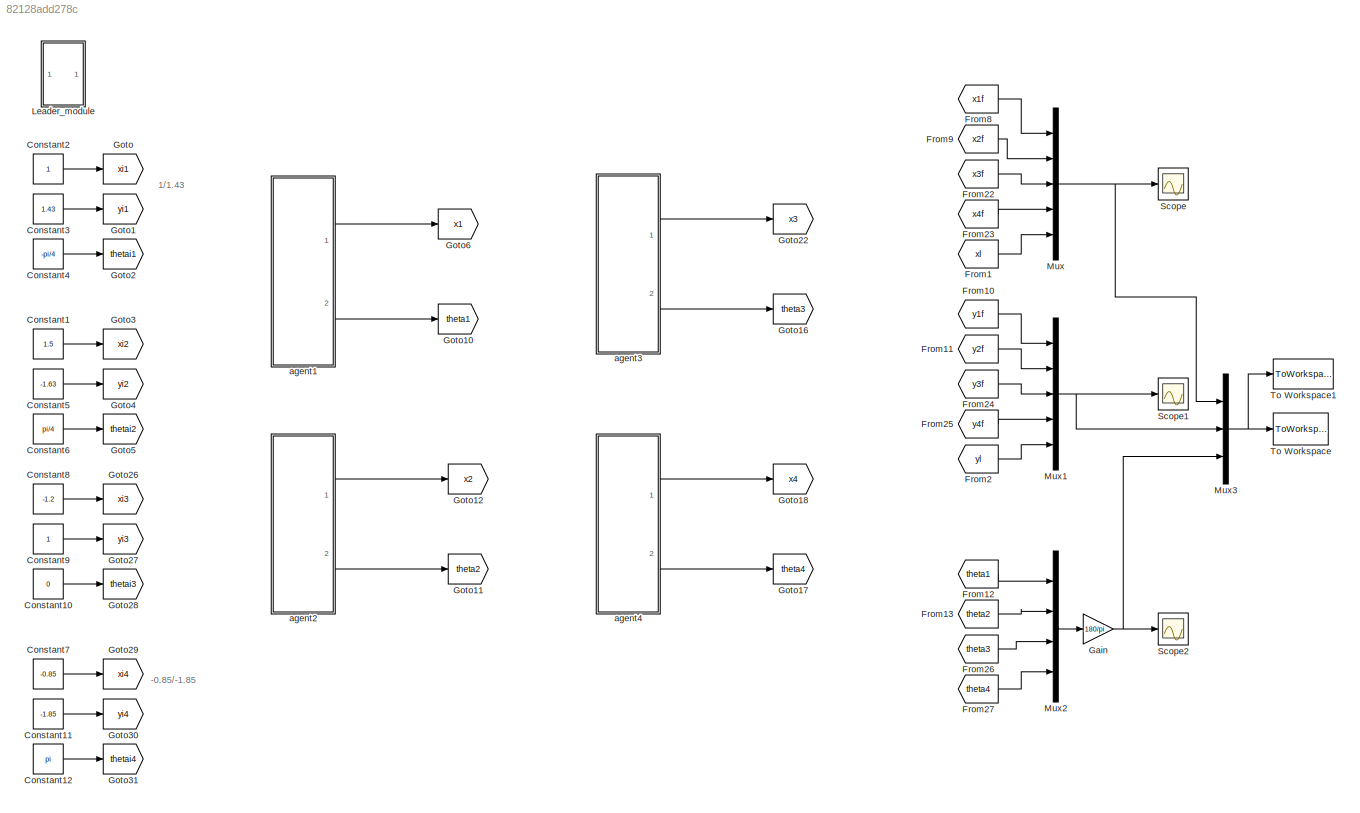
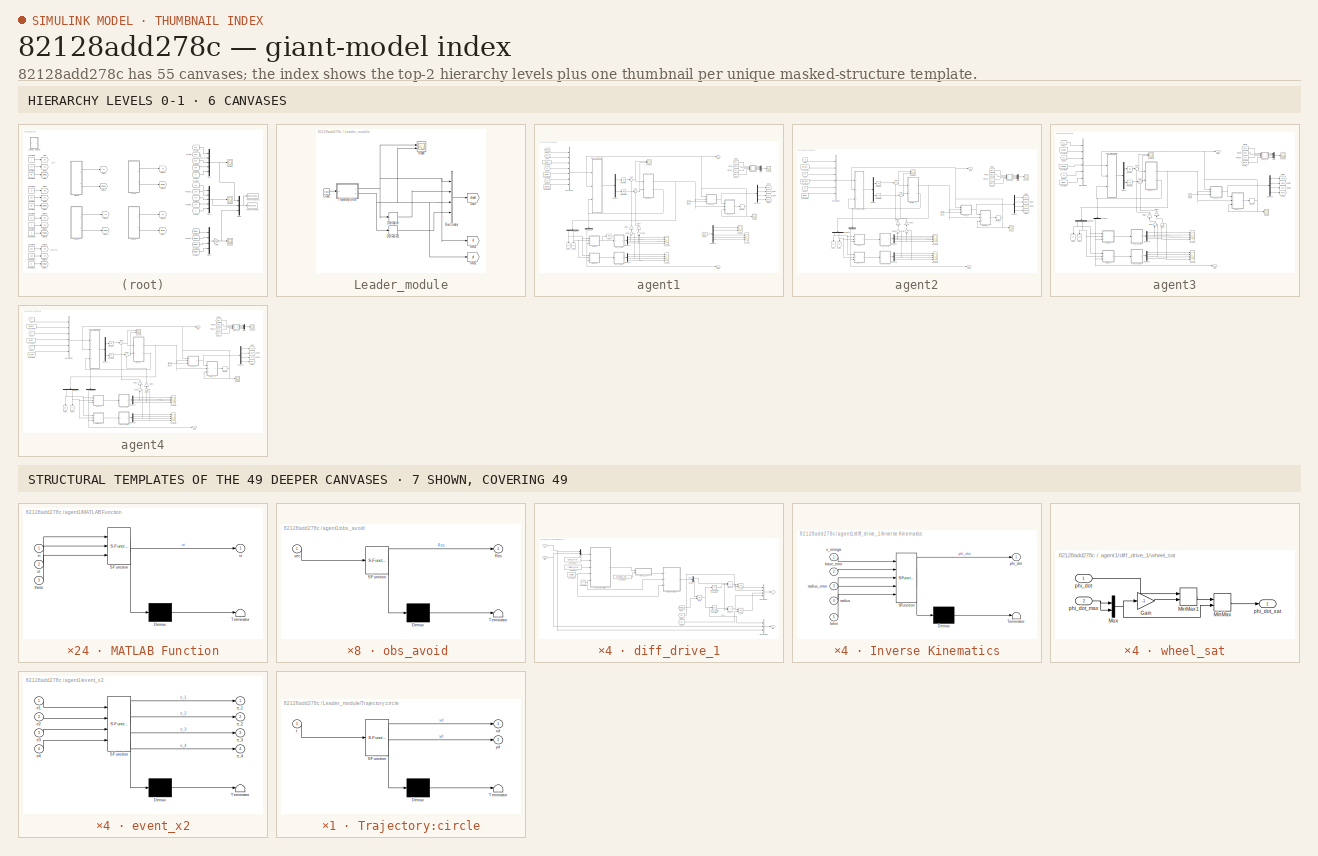
[diagram: thumbnail index - top-2 hierarchy levels (6 canvases) + 7 structural-template representatives of the remaining 49 canvases]
MODEL slx_82128add278c
KIND model
CONFIG AbsTol = auto
CONFIG EnableMultiTasking = off
CONFIG FixedStep = 0.01
CONFIG MaxStep = auto
CONFIG MinStep = auto
CONFIG RelTol = 1e-3
CONFIG SampleTimeConstraint = Unconstrained
CONFIG Solver = FixedStepAuto
CONFIG SolverName = FixedStepAuto
CONFIG StartTime = 0.0
CONFIG StopTime = 150
BLOCK [Constant] Constant1
  Value = 1.5
BLOCK [Constant] Constant10
  Value = 0
BLOCK [Constant] Constant11
  Value = -1.85
BLOCK [Constant] Constant12
  Value = pi
BLOCK [Constant] Constant2
BLOCK [Constant] Constant3
  Value = 1.43
BLOCK [Constant] Constant4
  Value = -pi/4
BLOCK [Constant] Constant5
  Value = -1.63
BLOCK [Constant] Constant6
  Value = pi/4
BLOCK [Constant] Constant7
  Value = -0.85
BLOCK [Constant] Constant8
  Value = -1.2
BLOCK [Constant] Constant9
BLOCK [From] From1
  GotoTag = xl
  TagVisibility = global
BLOCK [From] From10
  GotoTag = y1f
  TagVisibility = global
BLOCK [From] From11
  GotoTag = y2f
  TagVisibility = global
BLOCK [From] From12
  GotoTag = theta1
  TagVisibility = global
BLOCK [From] From13
  GotoTag = theta2
  TagVisibility = global
BLOCK [From] From2
  GotoTag = yl
  TagVisibility = global
BLOCK [From] From22
  GotoTag = x3f
  TagVisibility = global
BLOCK [From] From23
  GotoTag = x4f
  TagVisibility = global
BLOCK [From] From24
  GotoTag = y3f
  TagVisibility = global
BLOCK [From] From25
  GotoTag = y4f
  TagVisibility = global
BLOCK [From] From26
  GotoTag = theta3
  TagVisibility = global
BLOCK [From] From27
  GotoTag = theta4
  TagVisibility = global
BLOCK [From] From8
  GotoTag = x1f
  TagVisibility = global
BLOCK [From] From9
  GotoTag = x2f
  TagVisibility = global
BLOCK [Gain] Gain
  Gain = 180/pi
  OutDataTypeStr = Inherit: Inherit via internal rule
  ParamDataTypeStr = Inherit: Inherit via internal rule
  SaturateOnIntegerOverflow = off
BLOCK [Goto] Goto
  GotoTag = xi1
  TagVisibility = global
BLOCK [Goto] Goto1
  GotoTag = yi1
  TagVisibility = global
BLOCK [Goto] Goto10
  GotoTag = theta1
  TagVisibility = global
BLOCK [Goto] Goto11
  GotoTag = theta2
  TagVisibility = global
BLOCK [Goto] Goto12
  GotoTag = x2
  TagVisibility = global
BLOCK [Goto] Goto16
  GotoTag = theta3
  TagVisibility = global
BLOCK [Goto] Goto17
  GotoTag = theta4
  TagVisibility = global
BLOCK [Goto] Goto18
  GotoTag = x4
  TagVisibility = global
BLOCK [Goto] Goto2
  GotoTag = thetai1
  TagVisibility = global
BLOCK [Goto] Goto22
  GotoTag = x3
  TagVisibility = global
BLOCK [Goto] Goto26
  GotoTag = xi3
  TagVisibility = global
BLOCK [Goto] Goto27
  GotoTag = yi3
  TagVisibility = global
BLOCK [Goto] Goto28
  GotoTag = thetai3
  TagVisibility = global
BLOCK [Goto] Goto29
  GotoTag = xi4
  TagVisibility = global
BLOCK [Goto] Goto3
  GotoTag = xi2
  TagVisibility = global
BLOCK [Goto] Goto30
  GotoTag = yi4
  TagVisibility = global
BLOCK [Goto] Goto31
  GotoTag = thetai4
  TagVisibility = global
BLOCK [Goto] Goto4
  GotoTag = yi2
  TagVisibility = global
BLOCK [Goto] Goto5
  GotoTag = thetai2
  TagVisibility = global
BLOCK [Goto] Goto6
  GotoTag = x1
  TagVisibility = global
BLOCK [SubSystem] Leader_module
  Ports = []
  RequestExecContextInheritance = off
BLOCK [BusCreator] Leader_module/Bus Creator
  DisplayOption = bar
  InheritFromInputs = on
  Inputs = 4
  Ports = [4, 1]
BLOCK [Clock] Leader_module/Clock
BLOCK [Derivative] Leader_module/Derivative
BLOCK [Derivative] Leader_module/Derivative1
BLOCK [Goto] Leader_module/Goto
  GotoTag = xlead
  TagVisibility = global
BLOCK [Goto] Leader_module/Goto1
  GotoTag = xl
  TagVisibility = global
BLOCK [Goto] Leader_module/Goto2
  GotoTag = yl
  TagVisibility = global
BLOCK [Scope] Leader_module/Scope
  Floating = off
  NumInputPorts = 2
  Ports = [2]
  ScopeSpecificationString = Simulink.scopes.TimeScopeBlockCfg('CurrentConfiguration', extmgr.ConfigurationSet(extmgr.Configuration('Core','General UI',true),extmgr.Configuration('Core','Source UI',true),extmgr.Configuration('Sources','WiredSimulink',true,'DataLoggingVariableName','ScopeData1'),extmgr.Configuration('Visuals','Time Domain',true,'SerializedDisplays',{struct('MinYLimReal','-0.5','MaxYLimReal','2.5','YLabelReal',...<+1409ch>
BLOCK [SubSystem] Leader_module/Trajectory:circle
  ErrorFcn = Stateflow.Translate.translate
  PermitHierarchicalResolution = ExplicitOnly
  Ports = [1, 2]
  RequestExecContextInheritance = off
  SFBlockType = MATLAB Function
  TreatAsAtomicUnit = on
BLOCK [Demux] Leader_module/Trajectory:circle/ Demux 
  Outputs = 1
  Ports = [1, 1]
BLOCK [S-Function] Leader_module/Trajectory:circle/ SFunction 
  EnableBusSupport = on
  FunctionName = sf_sfun
  PortCounts = [1 3]
  Ports = [1, 3]
  SFcnIsStateOwnerBlock = off
  SFunctionDeploymentMode = off
  Tag = Stateflow S-Function event_based_v1 25
BLOCK [Terminator] Leader_module/Trajectory:circle/ Terminator 
BLOCK [Inport] Leader_module/Trajectory:circle/t
  IconDisplay = Port number
BLOCK [Outport] Leader_module/Trajectory:circle/xd
  IconDisplay = Port number
BLOCK [Outport] Leader_module/Trajectory:circle/yd
  IconDisplay = Port number
  Port = 2
BLOCK [Mux] Mux
  DisplayOption = bar
  Inputs = 5
  Ports = [5, 1]
BLOCK [Mux] Mux1
  DisplayOption = bar
  Inputs = 5
  Ports = [5, 1]
BLOCK [Mux] Mux2
  DisplayOption = bar
  Ports = [4, 1]
BLOCK [Mux] Mux3
  DisplayOption = bar
  Inputs = 3
  Ports = [3, 1]
BLOCK [Scope] Scope
  Floating = off
  NumInputPorts = 1
  Ports = [1]
  ScopeSpecificationString = Simulink.scopes.TimeScopeBlockCfg('CurrentConfiguration', extmgr.ConfigurationSet(extmgr.Configuration('Core','General UI',true),extmgr.Configuration('Core','Source UI',true),extmgr.Configuration('Sources','WiredSimulink',true,'DataLoggingVariableName','ScopeData1'),extmgr.Configuration('Visuals','Time Domain',true,'SerializedDisplays',{struct('MinYLimReal','-1.65074','MaxYLimReal','2.85667','YLab...<+1480ch>
BLOCK [Scope] Scope1
  Floating = off
  NumInputPorts = 1
  Ports = [1]
  ScopeSpecificationString = Simulink.scopes.TimeScopeBlockCfg('CurrentConfiguration', extmgr.ConfigurationSet(extmgr.Configuration('Core','General UI',true),extmgr.Configuration('Core','Source UI',true),extmgr.Configuration('Sources','WiredSimulink',true,'DataLoggingVariableName','ScopeData2'),extmgr.Configuration('Visuals','Time Domain',true,'SerializedDisplays',{struct('MinYLimReal','-2.26','MaxYLimReal','1.84','YLabelReal...<+1462ch>
BLOCK [Scope] Scope2
  Floating = off
  NumInputPorts = 1
  Ports = [1]
  ScopeSpecificationString = Simulink.scopes.TimeScopeBlockCfg('CurrentConfiguration', extmgr.ConfigurationSet(extmgr.Configuration('Core','General UI',true),extmgr.Configuration('Core','Source UI',true),extmgr.Configuration('Sources','WiredSimulink',true,'DataLoggingVariableName','ScopeData3'),extmgr.Configuration('Visuals','Time Domain',true,'SerializedDisplays',{struct('MinYLimReal','-1081.22613','MaxYLimReal','1279.00881'...<+1489ch>
BLOCK [ToWorkspace] To Workspace
  MaxDataPoints = inf
  Ports = [1]
  SampleTime = -1
  Save2DSignal = 2-D array (concatenate along first dimension)
  VariableName = yout
BLOCK [ToWorkspace] To Workspace1
  FixptAsFi = on
  MaxDataPoints = inf
  Ports = [1]
  SampleTime = -1
  Save2DSignal = 3-D array (concatenate along third dimension)
  SaveFormat = Structure With Time
  VariableName = multi_trig2
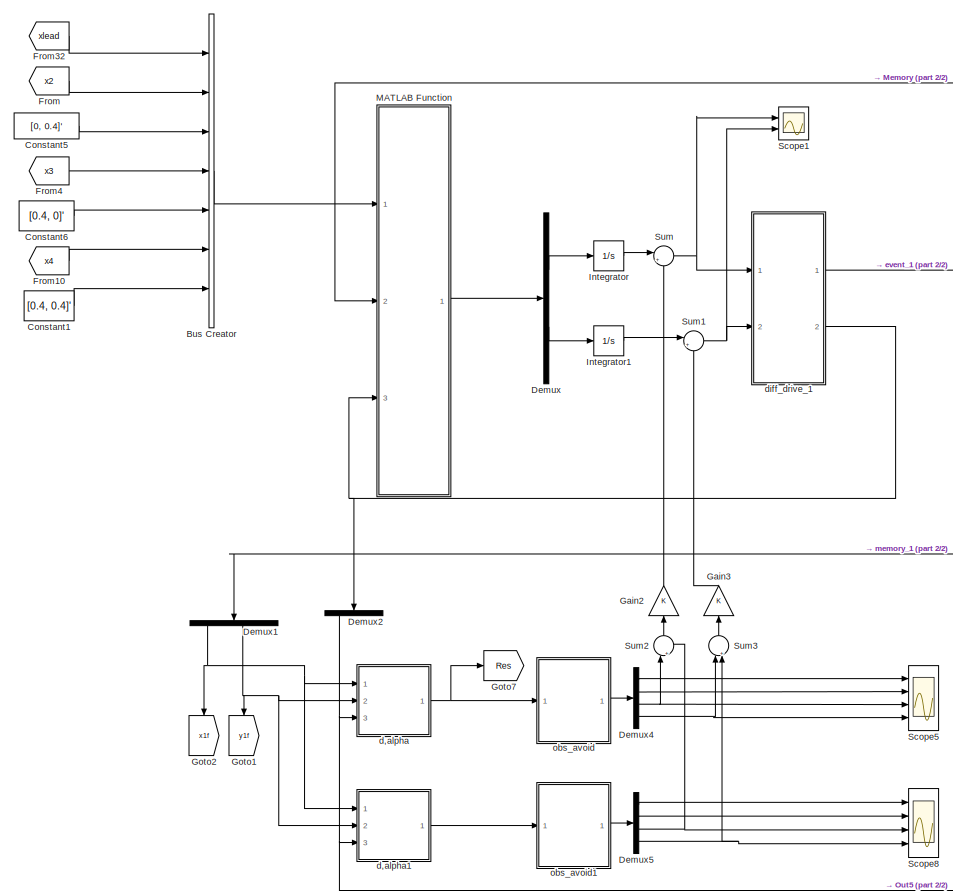
[diagram: agent1 - part 1/2, left side, full height]
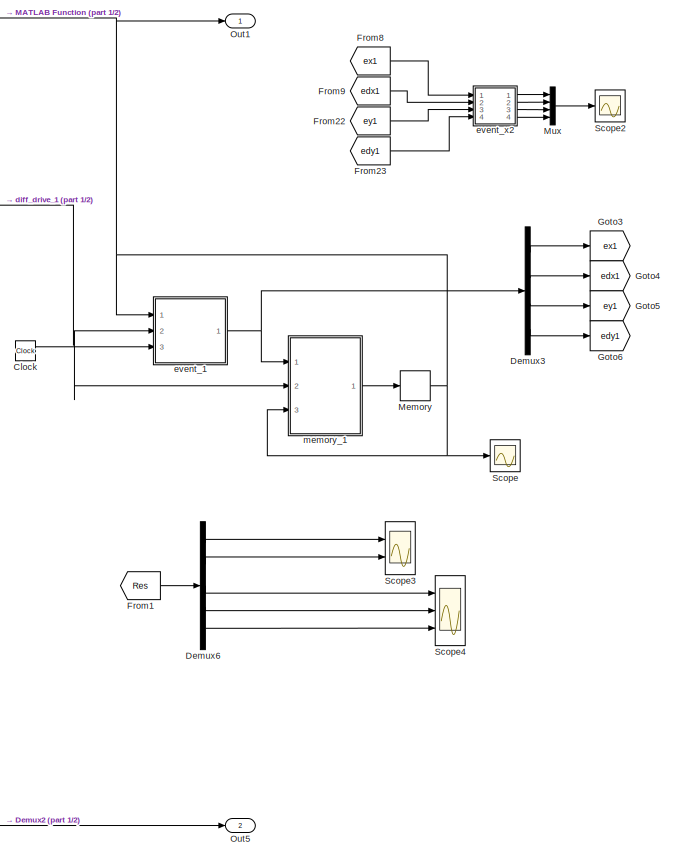
[diagram: agent1 - part 2/2, right side, full height]
BLOCK [SubSystem] agent1
  Ports = [0, 2]
  RequestExecContextInheritance = off
BLOCK [BusCreator] agent1/Bus Creator
  DisplayOption = bar
  InheritFromInputs = on
  Inputs = 7
  Ports = [7, 1]
BLOCK [Clock] agent1/Clock
BLOCK [Constant] agent1/Constant1
  Value = [0.4, 0.4]'
BLOCK [Constant] agent1/Constant5
  Value = [0, 0.4]'
BLOCK [Constant] agent1/Constant6
  Value = [0.4, 0]'
BLOCK [Demux] agent1/Demux
  DisplayOption = bar
  Outputs = 2
  Ports = [1, 2]
BLOCK [Demux] agent1/Demux1
  DisplayOption = bar
  Ports = [1, 4]
BLOCK [Demux] agent1/Demux2
  DisplayOption = bar
  Outputs = 3
  Ports = [1, 3]
BLOCK [Demux] agent1/Demux3
  DisplayOption = bar
  Ports = [1, 4]
BLOCK [Demux] agent1/Demux4
  DisplayOption = bar
  Ports = [1, 4]
BLOCK [Demux] agent1/Demux5
  DisplayOption = bar
  Ports = [1, 4]
BLOCK [Demux] agent1/Demux6
  DisplayOption = bar
  Outputs = 5
  Ports = [1, 5]
BLOCK [From] agent1/From
  GotoTag = x2
  TagVisibility = global
BLOCK [From] agent1/From1
  GotoTag = Res
  TagVisibility = global
BLOCK [From] agent1/From10
  GotoTag = x4
  TagVisibility = global
BLOCK [From] agent1/From22
  GotoTag = ey1
  TagVisibility = global
BLOCK [From] agent1/From23
  GotoTag = edy1
  TagVisibility = global
BLOCK [From] agent1/From32
  GotoTag = xlead
  TagVisibility = global
BLOCK [From] agent1/From4
  GotoTag = x3
  TagVisibility = global
BLOCK [From] agent1/From8
  GotoTag = ex1
  TagVisibility = global
BLOCK [From] agent1/From9
  GotoTag = edx1
  TagVisibility = global
BLOCK [Gain] agent1/Gain2
  OutDataTypeStr = Inherit: Inherit via internal rule
  ParamDataTypeStr = Inherit: Inherit via internal rule
  SaturateOnIntegerOverflow = off
BLOCK [Gain] agent1/Gain3
  OutDataTypeStr = Inherit: Inherit via internal rule
  ParamDataTypeStr = Inherit: Inherit via internal rule
  SaturateOnIntegerOverflow = off
BLOCK [Goto] agent1/Goto1
  GotoTag = y1f
  TagVisibility = global
BLOCK [Goto] agent1/Goto2
  GotoTag = x1f
  TagVisibility = global
BLOCK [Goto] agent1/Goto3
  GotoTag = ex1
  TagVisibility = global
BLOCK [Goto] agent1/Goto4
  GotoTag = edx1
  TagVisibility = global
BLOCK [Goto] agent1/Goto5
  GotoTag = ey1
  TagVisibility = global
BLOCK [Goto] agent1/Goto6
  GotoTag = edy1
  TagVisibility = global
BLOCK [Goto] agent1/Goto7
  GotoTag = Res
  TagVisibility = global
BLOCK [Integrator] agent1/Integrator
  Ports = [1, 1]
BLOCK [Integrator] agent1/Integrator1
  Ports = [1, 1]
BLOCK [SubSystem] agent1/MATLAB Function
  ErrorFcn = Stateflow.Translate.translate
  PermitHierarchicalResolution = ExplicitOnly
  Ports = [3, 1]
  RequestExecContextInheritance = off
  SFBlockType = MATLAB Function
  TreatAsAtomicUnit = on
BLOCK [Demux] agent1/MATLAB Function/ Demux 
  Outputs = 1
  Ports = [1, 1]
BLOCK [S-Function] agent1/MATLAB Function/ SFunction 
  EnableBusSupport = on
  FunctionName = sf_sfun
  PortCounts = [3 2]
  Ports = [3, 2]
  SFcnIsStateOwnerBlock = off
  SFunctionDeploymentMode = off
  Tag = Stateflow S-Function event_based_v1 2
BLOCK [Terminator] agent1/MATLAB Function/ Terminator 
BLOCK [Inport] agent1/MATLAB Function/theta
  IconDisplay = Port number
  Port = 3
BLOCK [Outport] agent1/MATLAB Function/ui
  IconDisplay = Port number
BLOCK [Inport] agent1/MATLAB Function/xi
  IconDisplay = Port number
BLOCK [Inport] agent1/MATLAB Function/xt
  IconDisplay = Port number
  Port = 2
BLOCK [Memory] agent1/Memory
  InitialCondition = [0 0 0 0]'
BLOCK [Mux] agent1/Mux
  DisplayOption = bar
  Ports = [4, 1]
BLOCK [Outport] agent1/Out1
  IconDisplay = Port number
BLOCK [Outport] agent1/Out5
  IconDisplay = Port number
  Port = 2
BLOCK [Scope] agent1/Scope
  Floating = off
  NumInputPorts = 1
  Ports = [1]
  ScopeSpecificationString = Simulink.scopes.TimeScopeBlockCfg('CurrentConfiguration', extmgr.ConfigurationSet(extmgr.Configuration('Core','General UI',true),extmgr.Configuration('Core','Source UI',true),extmgr.Configuration('Sources','WiredSimulink',true,'DataLoggingVariableName','ScopeData1'),extmgr.Configuration('Visuals','Time Domain',true,'SerializedDisplays',{struct('MinYLimReal','-0.31984','MaxYLimReal','1.62443','YLab...<+1476ch>
BLOCK [Scope] agent1/Scope1
  Floating = off
  NumInputPorts = 2
  Ports = [2]
  ScopeSpecificationString = Simulink.scopes.TimeScopeBlockCfg('CurrentConfiguration', extmgr.ConfigurationSet(extmgr.Configuration('Core','General UI',true),extmgr.Configuration('Core','Source UI',true),extmgr.Configuration('Sources','WiredSimulink',true,'DataLoggingVariableName','ScopeData1'),extmgr.Configuration('Visuals','Time Domain',true,'SerializedDisplays',{struct('MinYLimReal','-0.31547','MaxYLimReal','2.69564','YLab...<+2022ch>
BLOCK [Scope] agent1/Scope2
  Floating = off
  NumInputPorts = 1
  Ports = [1]
  ScopeSpecificationString = Simulink.scopes.TimeScopeBlockCfg('CurrentConfiguration', extmgr.ConfigurationSet(extmgr.Configuration('Core','General UI',true,'FigureColor',[1 1 1]),extmgr.Configuration('Core','Source UI',true),extmgr.Configuration('Sources','WiredSimulink',true,'DataLoggingVariableName','ScopeData2'),extmgr.Configuration('Visuals','Time Domain',true,'SerializedDisplays',{struct('MinYLimReal','-0.125','MaxYLimR...<+2001ch>
BLOCK [Scope] agent1/Scope3
  Floating = off
  NumInputPorts = 2
  Ports = [2]
  ScopeSpecificationString = Simulink.scopes.TimeScopeBlockCfg('CurrentConfiguration', extmgr.ConfigurationSet(extmgr.Configuration('Core','General UI',true),extmgr.Configuration('Core','Source UI',true),extmgr.Configuration('Sources','WiredSimulink',true,'DataLoggingVariableName','ScopeData1','DataLoggingSaveFormat','StructureWithTime','DataLoggingDecimation','1','DataLoggingDecimateData',true),extmgr.Configuration('Visuals'...<+2306ch>
BLOCK [Scope] agent1/Scope4
  Floating = off
  NumInputPorts = 3
  Ports = [3]
  ScopeSpecificationString = Simulink.scopes.TimeScopeBlockCfg('CurrentConfiguration', extmgr.ConfigurationSet(extmgr.Configuration('Core','General UI',true),extmgr.Configuration('Core','Source UI',true),extmgr.Configuration('Sources','WiredSimulink',true,'DataLoggingVariableName','ScopeData2','DataLoggingSaveFormat','StructureWithTime','DataLoggingDecimation','1','DataLoggingDecimateData',true),extmgr.Configuration('Visuals'...<+3001ch>
BLOCK [Scope] agent1/Scope5
  Floating = off
  NumInputPorts = 4
  Ports = [4]
  ScopeSpecificationString = Simulink.scopes.TimeScopeBlockCfg('CurrentConfiguration', extmgr.ConfigurationSet(extmgr.Configuration('Core','General UI',true),extmgr.Configuration('Core','Source UI',true),extmgr.Configuration('Sources','WiredSimulink',true,'DataLoggingVariableName','ScopeData1','DataLoggingSaveFormat','StructureWithTime','DataLoggingDecimation','1','DataLoggingDecimateData',true),extmgr.Configuration('Visuals'...<+3698ch>
BLOCK [Scope] agent1/Scope8
  Floating = off
  NumInputPorts = 4
  Ports = [4]
  ScopeSpecificationString = Simulink.scopes.TimeScopeBlockCfg('CurrentConfiguration', extmgr.ConfigurationSet(extmgr.Configuration('Core','General UI',true),extmgr.Configuration('Core','Source UI',true),extmgr.Configuration('Sources','WiredSimulink',true,'DataLoggingVariableName','ScopeData2','DataLoggingSaveFormat','StructureWithTime','DataLoggingDecimation','1','DataLoggingDecimateData',true),extmgr.Configuration('Visuals'...<+3715ch>
BLOCK [Sum] agent1/Sum
  IconShape = round
  InputSameDT = off
  Inputs = |++
  OutDataTypeStr = Inherit: Inherit via internal rule
  Ports = [2, 1]
  SaturateOnIntegerOverflow = off
BLOCK [Sum] agent1/Sum1
  IconShape = round
  InputSameDT = off
  Inputs = |++
  OutDataTypeStr = Inherit: Inherit via internal rule
  Ports = [2, 1]
  SaturateOnIntegerOverflow = off
BLOCK [Sum] agent1/Sum2
  IconShape = round
  InputSameDT = off
  Inputs = |++
  OutDataTypeStr = Inherit: Inherit via internal rule
  Ports = [2, 1]
  SaturateOnIntegerOverflow = off
BLOCK [Sum] agent1/Sum3
  IconShape = round
  InputSameDT = off
  Inputs = |++
  OutDataTypeStr = Inherit: Inherit via internal rule
  Ports = [2, 1]
  SaturateOnIntegerOverflow = off
BLOCK [SubSystem] agent1/d,alpha
  ErrorFcn = Stateflow.Translate.translate
  PermitHierarchicalResolution = ExplicitOnly
  Ports = [3, 1]
  RequestExecContextInheritance = off
  SFBlockType = MATLAB Function
  TreatAsAtomicUnit = on
BLOCK [Demux] agent1/d,alpha/ Demux 
  Outputs = 1
  Ports = [1, 1]
BLOCK [S-Function] agent1/d,alpha/ SFunction 
  EnableBusSupport = on
  FunctionName = sf_sfun
  PortCounts = [3 2]
  Ports = [3, 2]
  SFcnIsStateOwnerBlock = off
  SFunctionDeploymentMode = off
  Tag = Stateflow S-Function event_based_v1 3
BLOCK [Terminator] agent1/d,alpha/ Terminator 
BLOCK [Outport] agent1/d,alpha/Res
  IconDisplay = Port number
BLOCK [Inport] agent1/d,alpha/theta
  IconDisplay = Port number
  Port = 3
BLOCK [Inport] agent1/d,alpha/xr
  IconDisplay = Port number
BLOCK [Inport] agent1/d,alpha/yr
  IconDisplay = Port number
  Port = 2
BLOCK [SubSystem] agent1/d,alpha1
  ErrorFcn = Stateflow.Translate.translate
  PermitHierarchicalResolution = ExplicitOnly
  Ports = [3, 1]
  RequestExecContextInheritance = off
  SFBlockType = MATLAB Function
  TreatAsAtomicUnit = on
BLOCK [Demux] agent1/d,alpha1/ Demux 
  Outputs = 1
  Ports = [1, 1]
BLOCK [S-Function] agent1/d,alpha1/ SFunction 
  EnableBusSupport = on
  FunctionName = sf_sfun
  PortCounts = [3 2]
  Ports = [3, 2]
  SFcnIsStateOwnerBlock = off
  SFunctionDeploymentMode = off
  Tag = Stateflow S-Function event_based_v1 26
BLOCK [Terminator] agent1/d,alpha1/ Terminator 
BLOCK [Outport] agent1/d,alpha1/Res
  IconDisplay = Port number
BLOCK [Inport] agent1/d,alpha1/theta
  IconDisplay = Port number
  Port = 3
BLOCK [Inport] agent1/d,alpha1/xr
  IconDisplay = Port number
BLOCK [Inport] agent1/d,alpha1/yr
  IconDisplay = Port number
  Port = 2
BLOCK [SubSystem] agent1/diff_drive_1
  Ports = [2, 2]
  RequestExecContextInheritance = off
BLOCK [BusCreator] agent1/diff_drive_1/Bus Creator
  DisplayOption = bar
  InheritFromInputs = on
  Inputs = 4
  Ports = [4, 1]
BLOCK [BusCreator] agent1/diff_drive_1/Bus Creator1
  DisplayOption = bar
  InheritFromInputs = on
  Inputs = 3
  Ports = [3, 1]
BLOCK [Constant] agent1/diff_drive_1/Constant10
  Value = base_error
BLOCK [Constant] agent1/diff_drive_1/Constant3
  Value = pi*omega_max/180
BLOCK [Constant] agent1/diff_drive_1/Constant6
  Value = radius
BLOCK [Constant] agent1/diff_drive_1/Constant7
  Value = radius_error
BLOCK [Constant] agent1/diff_drive_1/Constant8
  Value = base
BLOCK [Demux] agent1/diff_drive_1/Demux
  DisplayOption = bar
  Outputs = 2
  Ports = [1, 2]
BLOCK [SubSystem] agent1/diff_drive_1/Direct Kinematics
  ErrorFcn = Stateflow.Translate.translate
  PermitHierarchicalResolution = ExplicitOnly
  Ports = [3, 1]
  RequestExecContextInheritance = off
  SFBlockType = MATLAB Function
  TreatAsAtomicUnit = on
BLOCK [Demux] agent1/diff_drive_1/Direct Kinematics/ Demux 
  Outputs = 1
  Ports = [1, 1]
BLOCK [S-Function] agent1/diff_drive_1/Direct Kinematics/ SFunction 
  EnableBusSupport = on
  FunctionName = sf_sfun
  PortCounts = [3 2]
  Ports = [3, 2]
  SFcnIsStateOwnerBlock = off
  SFunctionDeploymentMode = off
  Tag = Stateflow S-Function event_based_v1 44
BLOCK [Terminator] agent1/diff_drive_1/Direct Kinematics/ Terminator 
BLOCK [Inport] agent1/diff_drive_1/Direct Kinematics/base
  IconDisplay = Port number
  Port = 2
BLOCK [Inport] agent1/diff_drive_1/Direct Kinematics/phi_dot
  IconDisplay = Port number
BLOCK [Inport] agent1/diff_drive_1/Direct Kinematics/radius
  IconDisplay = Port number
  Port = 3
BLOCK [Outport] agent1/diff_drive_1/Direct Kinematics/v_omega
  IconDisplay = Port number
BLOCK [From] agent1/diff_drive_1/From
  GotoTag = thetai1
  TagVisibility = global
BLOCK [From] agent1/diff_drive_1/From1
  GotoTag = xi1
  TagVisibility = global
BLOCK [From] agent1/diff_drive_1/From2
  GotoTag = yi1
  TagVisibility = global
BLOCK [SubSystem] agent1/diff_drive_1/Inverse Kinematics
  ErrorFcn = Stateflow.Translate.translate
  PermitHierarchicalResolution = ExplicitOnly
  Ports = [5, 1]
  RequestExecContextInheritance = off
  SFBlockType = MATLAB Function
  TreatAsAtomicUnit = on
BLOCK [Demux] agent1/diff_drive_1/Inverse Kinematics/ Demux 
  Outputs = 1
  Ports = [1, 1]
BLOCK [S-Function] agent1/diff_drive_1/Inverse Kinematics/ SFunction 
  EnableBusSupport = on
  FunctionName = sf_sfun
  PortCounts = [5 2]
  Ports = [5, 2]
  SFcnIsStateOwnerBlock = off
  SFunctionDeploymentMode = off
  Tag = Stateflow S-Function event_based_v1 45
BLOCK [Terminator] agent1/diff_drive_1/Inverse Kinematics/ Terminator 
BLOCK [Inport] agent1/diff_drive_1/Inverse Kinematics/base
  IconDisplay = Port number
  Port = 5
BLOCK [Inport] agent1/diff_drive_1/Inverse Kinematics/base_error
  IconDisplay = Port number
  Port = 2
BLOCK [Outport] agent1/diff_drive_1/Inverse Kinematics/phi_dot
  IconDisplay = Port number
BLOCK [Inport] agent1/diff_drive_1/Inverse Kinematics/radius
  IconDisplay = Port number
  Port = 4
BLOCK [Inport] agent1/diff_drive_1/Inverse Kinematics/radius_error
  IconDisplay = Port number
  Port = 3
BLOCK [Inport] agent1/diff_drive_1/Inverse Kinematics/v_omega
  IconDisplay = Port number
BLOCK [Mux] agent1/diff_drive_1/Mux
  DisplayOption = bar
  Inputs = 2
  Ports = [2, 1]
BLOCK [Product] agent1/diff_drive_1/Product
  InputSameDT = off
  OutDataTypeStr = Inherit: Inherit via internal rule
  Ports = [2, 1]
  RndMeth = Floor
  SaturateOnIntegerOverflow = off
BLOCK [Product] agent1/diff_drive_1/Product1
  InputSameDT = off
  OutDataTypeStr = Inherit: Inherit via internal rule
  Ports = [2, 1]
  RndMeth = Floor
  SaturateOnIntegerOverflow = off
BLOCK [Trigonometry] agent1/diff_drive_1/Trigonometric Function
  Ports = [1, 1]
BLOCK [Trigonometry] agent1/diff_drive_1/Trigonometric Function1
  Operator = cos
  Ports = [1, 1]
BLOCK [Outport] agent1/diff_drive_1/hx
  IconDisplay = Port number
BLOCK [Outport] agent1/diff_drive_1/teta
  IconDisplay = Port number
  Port = 2
BLOCK [Integrator] agent1/diff_drive_1/theta
  InitialCondition = theta01
  InitialConditionSource = external
  Ports = [2, 1]
BLOCK [Inport] agent1/diff_drive_1/vr
  IconDisplay = Port number
BLOCK [SubSystem] agent1/diff_drive_1/wheel_sat
  Ports = [2, 1]
  RequestExecContextInheritance = off
BLOCK [Gain] agent1/diff_drive_1/wheel_sat/Gain
  Gain = -1
  OutDataTypeStr = Inherit: Inherit via internal rule
  ParamDataTypeStr = Inherit: Inherit via internal rule
  SaturateOnIntegerOverflow = off
BLOCK [MinMax] agent1/diff_drive_1/wheel_sat/MinMax
  InputSameDT = off
  Inputs = 2
  Ports = [2, 1]
  SaturateOnIntegerOverflow = off
BLOCK [MinMax] agent1/diff_drive_1/wheel_sat/MinMax1
  Function = max
  InputSameDT = off
  Inputs = 2
  Ports = [2, 1]
  SaturateOnIntegerOverflow = off
BLOCK [Mux] agent1/diff_drive_1/wheel_sat/Mux
  DisplayOption = bar
  Inputs = 2
  Ports = [2, 1]
BLOCK [Inport] agent1/diff_drive_1/wheel_sat/phi_dot
  IconDisplay = Port number
BLOCK [Inport] agent1/diff_drive_1/wheel_sat/phi_dot_max
  IconDisplay = Port number
  Port = 2
BLOCK [Outport] agent1/diff_drive_1/wheel_sat/phi_dot_sat
  IconDisplay = Port number
BLOCK [Inport] agent1/diff_drive_1/wr
  IconDisplay = Port number
  Port = 2
BLOCK [Integrator] agent1/diff_drive_1/x_up
  InitialCondition = x01
  InitialConditionSource = external
  Ports = [2, 1]
BLOCK [Integrator] agent1/diff_drive_1/y_up
  InitialCondition = y01
  InitialConditionSource = external
  Ports = [2, 1]
BLOCK [SubSystem] agent1/event_1
  ErrorFcn = Stateflow.Translate.translate
  PermitHierarchicalResolution = ExplicitOnly
  Ports = [3, 1]
  RequestExecContextInheritance = off
  SFBlockType = MATLAB Function
  TreatAsAtomicUnit = on
BLOCK [Demux] agent1/event_1/ Demux 
  Outputs = 1
  Ports = [1, 1]
BLOCK [S-Function] agent1/event_1/ SFunction 
  EnableBusSupport = on
  FunctionName = sf_sfun
  PortCounts = [3 2]
  Ports = [3, 2]
  SFcnIsStateOwnerBlock = off
  SFunctionDeploymentMode = off
  Tag = Stateflow S-Function event_based_v1 17
BLOCK [Terminator] agent1/event_1/ Terminator 
BLOCK [Outport] agent1/event_1/e_t
  IconDisplay = Port number
BLOCK [Inport] agent1/event_1/m
  IconDisplay = Port number
BLOCK [Inport] agent1/event_1/t
  IconDisplay = Port number
  Port = 3
BLOCK [Inport] agent1/event_1/xt
  IconDisplay = Port number
  Port = 2
BLOCK [SubSystem] agent1/event_x2
  ErrorFcn = Stateflow.Translate.translate
  PermitHierarchicalResolution = ExplicitOnly
  Ports = [4, 4]
  RequestExecContextInheritance = off
  SFBlockType = MATLAB Function
  TreatAsAtomicUnit = on
BLOCK [Demux] agent1/event_x2/ Demux 
  Outputs = 1
  Ports = [1, 1]
BLOCK [S-Function] agent1/event_x2/ SFunction 
  EnableBusSupport = on
  FunctionName = sf_sfun
  PortCounts = [4 5]
  Ports = [4, 5]
  SFcnIsStateOwnerBlock = off
  SFunctionDeploymentMode = off
  Tag = Stateflow S-Function event_based_v1 24
BLOCK [Terminator] agent1/event_x2/ Terminator 
BLOCK [Inport] agent1/event_x2/e1
  IconDisplay = Port number
BLOCK [Inport] agent1/event_x2/e2
  IconDisplay = Port number
  Port = 2
BLOCK [Inport] agent1/event_x2/e3
  IconDisplay = Port number
  Port = 3
BLOCK [Inport] agent1/event_x2/e4
  IconDisplay = Port number
  Port = 4
BLOCK [Outport] agent1/event_x2/e_1
  IconDisplay = Port number
BLOCK [Outport] agent1/event_x2/e_2
  IconDisplay = Port number
  Port = 2
BLOCK [Outport] agent1/event_x2/e_3
  IconDisplay = Port number
  Port = 3
BLOCK [Outport] agent1/event_x2/e_4
  IconDisplay = Port number
  Port = 4
BLOCK [SubSystem] agent1/memory_1
  ErrorFcn = Stateflow.Translate.translate
  PermitHierarchicalResolution = ExplicitOnly
  Ports = [3, 1]
  RequestExecContextInheritance = off
  SFBlockType = MATLAB Function
  TreatAsAtomicUnit = on
BLOCK [Demux] agent1/memory_1/ Demux 
  Outputs = 1
  Ports = [1, 1]
BLOCK [S-Function] agent1/memory_1/ SFunction 
  EnableBusSupport = on
  FunctionName = sf_sfun
  PortCounts = [3 2]
  Ports = [3, 2]
  SFcnIsStateOwnerBlock = off
  SFunctionDeploymentMode = off
  Tag = Stateflow S-Function event_based_v1 19
BLOCK [Terminator] agent1/memory_1/ Terminator 
BLOCK [Inport] agent1/memory_1/et
  IconDisplay = Port number
BLOCK [Inport] agent1/memory_1/m
  IconDisplay = Port number
  Port = 3
BLOCK [Outport] agent1/memory_1/m_x
  IconDisplay = Port number
BLOCK [Inport] agent1/memory_1/xt
  IconDisplay = Port number
  Port = 2
BLOCK [SubSystem] agent1/obs_avoid 
  ErrorFcn = Stateflow.Translate.translate
  PermitHierarchicalResolution = ExplicitOnly
  Ports = [1, 1]
  RequestExecContextInheritance = off
  SFBlockType = MATLAB Function
  TreatAsAtomicUnit = on
BLOCK [Demux] agent1/obs_avoid / Demux 
  Outputs = 1
  Ports = [1, 1]
BLOCK [S-Function] agent1/obs_avoid / SFunction 
  EnableBusSupport = on
  FunctionName = sf_sfun
  PortCounts = [1 2]
  Ports = [1, 2]
  SFcnIsStateOwnerBlock = off
  SFunctionDeploymentMode = off
  Tag = Stateflow S-Function event_based_v1 27
BLOCK [Terminator] agent1/obs_avoid / Terminator 
BLOCK [Outport] agent1/obs_avoid /Res
  IconDisplay = Port number
BLOCK [Inport] agent1/obs_avoid /vec
  IconDisplay = Port number
BLOCK [SubSystem] agent1/obs_avoid1
  ErrorFcn = Stateflow.Translate.translate
  PermitHierarchicalResolution = ExplicitOnly
  Ports = [1, 1]
  RequestExecContextInheritance = off
  SFBlockType = MATLAB Function
  TreatAsAtomicUnit = on
BLOCK [Demux] agent1/obs_avoid1/ Demux 
  Outputs = 1
  Ports = [1, 1]
BLOCK [S-Function] agent1/obs_avoid1/ SFunction 
  EnableBusSupport = on
  FunctionName = sf_sfun
  PortCounts = [1 2]
  Ports = [1, 2]
  SFcnIsStateOwnerBlock = off
  SFunctionDeploymentMode = off
  Tag = Stateflow S-Function event_based_v1 31
BLOCK [Terminator] agent1/obs_avoid1/ Terminator 
BLOCK [Outport] agent1/obs_avoid1/Res
  IconDisplay = Port number
BLOCK [Inport] agent1/obs_avoid1/vec
  IconDisplay = Port number
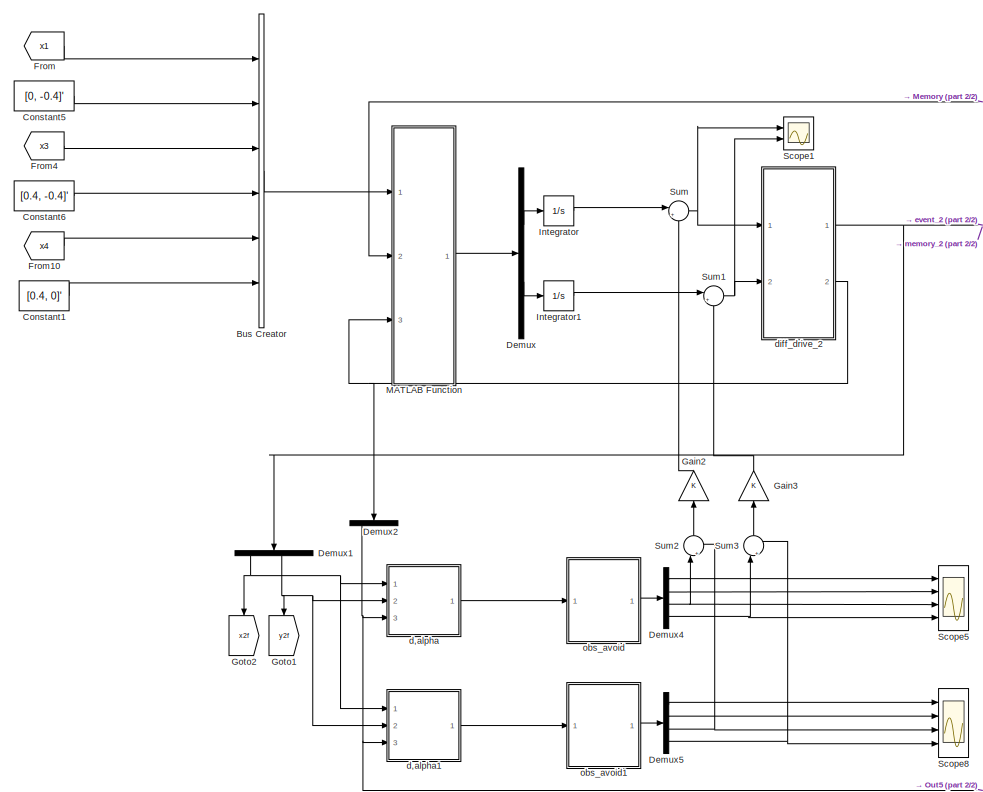
[diagram: agent2 - part 1/2, left side, full height]
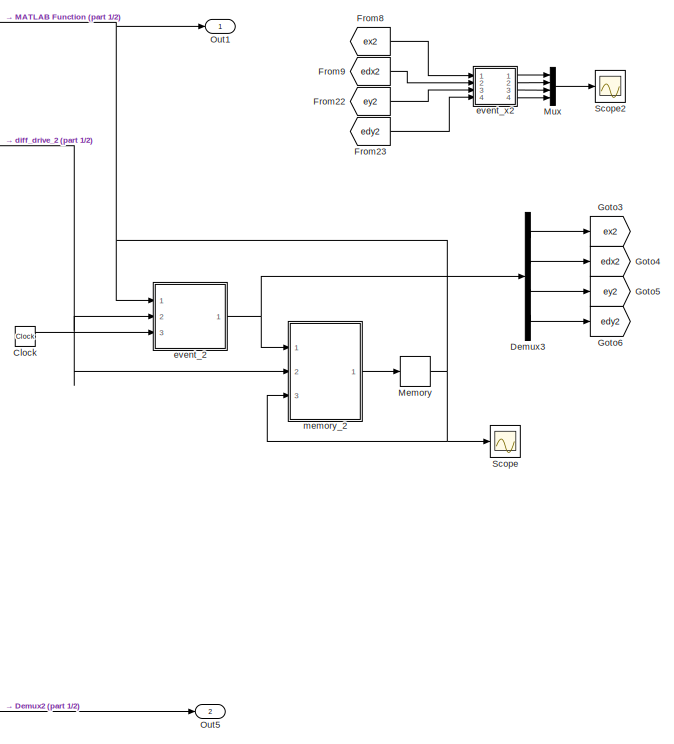
[diagram: agent2 - part 2/2, right side, full height]
BLOCK [SubSystem] agent2
  Ports = [0, 2]
  RequestExecContextInheritance = off
BLOCK [BusCreator] agent2/Bus Creator
  DisplayOption = bar
  InheritFromInputs = on
  Inputs = 6
  Ports = [6, 1]
BLOCK [Clock] agent2/Clock
BLOCK [Constant] agent2/Constant1
  Value = [0.4, 0]'
BLOCK [Constant] agent2/Constant5
  Value = [0, -0.4]'
BLOCK [Constant] agent2/Constant6
  Value = [0.4, -0.4]'
BLOCK [Demux] agent2/Demux
  DisplayOption = bar
  Outputs = 2
  Ports = [1, 2]
BLOCK [Demux] agent2/Demux1
  DisplayOption = bar
  Ports = [1, 4]
BLOCK [Demux] agent2/Demux2
  DisplayOption = bar
  Outputs = 3
  Ports = [1, 3]
BLOCK [Demux] agent2/Demux3
  DisplayOption = bar
  Ports = [1, 4]
BLOCK [Demux] agent2/Demux4
  DisplayOption = bar
  Ports = [1, 4]
BLOCK [Demux] agent2/Demux5
  DisplayOption = bar
  Ports = [1, 4]
BLOCK [From] agent2/From
  GotoTag = x1
  TagVisibility = global
BLOCK [From] agent2/From10
  GotoTag = x4
  TagVisibility = global
BLOCK [From] agent2/From22
  GotoTag = ey2
  TagVisibility = global
BLOCK [From] agent2/From23
  GotoTag = edy2
  TagVisibility = global
BLOCK [From] agent2/From4
  GotoTag = x3
  TagVisibility = global
BLOCK [From] agent2/From8
  GotoTag = ex2
  TagVisibility = global
BLOCK [From] agent2/From9
  GotoTag = edx2
  TagVisibility = global
BLOCK [Gain] agent2/Gain2
  OutDataTypeStr = Inherit: Inherit via internal rule
  ParamDataTypeStr = Inherit: Inherit via internal rule
  SaturateOnIntegerOverflow = off
BLOCK [Gain] agent2/Gain3
  OutDataTypeStr = Inherit: Inherit via internal rule
  ParamDataTypeStr = Inherit: Inherit via internal rule
  SaturateOnIntegerOverflow = off
BLOCK [Goto] agent2/Goto1
  GotoTag = y2f
  TagVisibility = global
BLOCK [Goto] agent2/Goto2
  GotoTag = x2f
  TagVisibility = global
BLOCK [Goto] agent2/Goto3
  GotoTag = ex2
  TagVisibility = global
BLOCK [Goto] agent2/Goto4
  GotoTag = edx2
  TagVisibility = global
BLOCK [Goto] agent2/Goto5
  GotoTag = ey2
  TagVisibility = global
BLOCK [Goto] agent2/Goto6
  GotoTag = edy2
  TagVisibility = global
BLOCK [Integrator] agent2/Integrator
  Ports = [1, 1]
BLOCK [Integrator] agent2/Integrator1
  Ports = [1, 1]
BLOCK [SubSystem] agent2/MATLAB Function
  ErrorFcn = Stateflow.Translate.translate
  PermitHierarchicalResolution = ExplicitOnly
  Ports = [3, 1]
  RequestExecContextInheritance = off
  SFBlockType = MATLAB Function
  TreatAsAtomicUnit = on
BLOCK [Demux] agent2/MATLAB Function/ Demux 
  Outputs = 1
  Ports = [1, 1]
BLOCK [S-Function] agent2/MATLAB Function/ SFunction 
  EnableBusSupport = on
  FunctionName = sf_sfun
  PortCounts = [3 2]
  Ports = [3, 2]
  SFcnIsStateOwnerBlock = off
  SFunctionDeploymentMode = off
  Tag = Stateflow S-Function event_based_v1 1
BLOCK [Terminator] agent2/MATLAB Function/ Terminator 
BLOCK [Inport] agent2/MATLAB Function/theta
  IconDisplay = Port number
  Port = 3
BLOCK [Outport] agent2/MATLAB Function/ui
  IconDisplay = Port number
BLOCK [Inport] agent2/MATLAB Function/xi
  IconDisplay = Port number
BLOCK [Inport] agent2/MATLAB Function/xt
  IconDisplay = Port number
  Port = 2
BLOCK [Memory] agent2/Memory
  InitialCondition = [0 0 0 0]'
BLOCK [Mux] agent2/Mux
  DisplayOption = bar
  Ports = [4, 1]
BLOCK [Outport] agent2/Out1
  IconDisplay = Port number
BLOCK [Outport] agent2/Out5
  IconDisplay = Port number
  Port = 2
BLOCK [Scope] agent2/Scope
  Floating = off
  NumInputPorts = 1
  Ports = [1]
  ScopeSpecificationString = Simulink.scopes.TimeScopeBlockCfg('CurrentConfiguration', extmgr.ConfigurationSet(extmgr.Configuration('Core','General UI',true),extmgr.Configuration('Core','Source UI',true),extmgr.Configuration('Sources','WiredSimulink',true,'DataLoggingVariableName','ScopeData3'),extmgr.Configuration('Visuals','Time Domain',true,'SerializedDisplays',{struct('MinYLimReal','-2.02125','MaxYLimReal','1.89125','YLab...<+1457ch>
BLOCK [Scope] agent2/Scope1
  Floating = off
  NumInputPorts = 2
  Ports = [2]
  ScopeSpecificationString = Simulink.scopes.TimeScopeBlockCfg('CurrentConfiguration', extmgr.ConfigurationSet(extmgr.Configuration('Core','General UI',true),extmgr.Configuration('Core','Source UI',true),extmgr.Configuration('Sources','WiredSimulink',true,'DataLoggingVariableName','ScopeData1'),extmgr.Configuration('Visuals','Time Domain',true,'SerializedDisplays',{struct('MinYLimReal','-0.2076','MaxYLimReal','1.73457','YLabe...<+2020ch>
BLOCK [Scope] agent2/Scope2
  Floating = off
  NumInputPorts = 1
  Ports = [1]
  ScopeSpecificationString = Simulink.scopes.TimeScopeBlockCfg('CurrentConfiguration', extmgr.ConfigurationSet(extmgr.Configuration('Core','General UI',true,'FigureColor',[1 1 1]),extmgr.Configuration('Core','Source UI',true),extmgr.Configuration('Sources','WiredSimulink',true,'DataLoggingVariableName','ScopeData4'),extmgr.Configuration('Visuals','Time Domain',true,'SerializedDisplays',{struct('MinYLimReal','-0.125','MaxYLimR...<+1993ch>
BLOCK [Scope] agent2/Scope5
  Floating = off
  NumInputPorts = 4
  Ports = [4]
  ScopeSpecificationString = Simulink.scopes.TimeScopeBlockCfg('CurrentConfiguration', extmgr.ConfigurationSet(extmgr.Configuration('Core','General UI',true),extmgr.Configuration('Core','Source UI',true),extmgr.Configuration('Sources','WiredSimulink',true,'DataLoggingVariableName','ScopeData3','DataLoggingSaveFormat','StructureWithTime','DataLoggingDecimation','1','DataLoggingDecimateData',true),extmgr.Configuration('Visuals'...<+3693ch>
BLOCK [Scope] agent2/Scope8
  Floating = off
  NumInputPorts = 4
  Ports = [4]
  ScopeSpecificationString = Simulink.scopes.TimeScopeBlockCfg('CurrentConfiguration', extmgr.ConfigurationSet(extmgr.Configuration('Core','General UI',true),extmgr.Configuration('Core','Source UI',true),extmgr.Configuration('Sources','WiredSimulink',true,'DataLoggingVariableName','ScopeData4','DataLoggingSaveFormat','StructureWithTime','DataLoggingDecimation','1','DataLoggingDecimateData',true),extmgr.Configuration('Visuals'...<+3715ch>
BLOCK [Sum] agent2/Sum
  IconShape = round
  InputSameDT = off
  Inputs = |++
  OutDataTypeStr = Inherit: Inherit via internal rule
  Ports = [2, 1]
  SaturateOnIntegerOverflow = off
BLOCK [Sum] agent2/Sum1
  IconShape = round
  InputSameDT = off
  Inputs = |++
  OutDataTypeStr = Inherit: Inherit via internal rule
  Ports = [2, 1]
  SaturateOnIntegerOverflow = off
BLOCK [Sum] agent2/Sum2
  IconShape = round
  InputSameDT = off
  Inputs = |++
  OutDataTypeStr = Inherit: Inherit via internal rule
  Ports = [2, 1]
  SaturateOnIntegerOverflow = off
BLOCK [Sum] agent2/Sum3
  IconShape = round
  InputSameDT = off
  Inputs = |++
  OutDataTypeStr = Inherit: Inherit via internal rule
  Ports = [2, 1]
  SaturateOnIntegerOverflow = off
BLOCK [SubSystem] agent2/d,alpha
  ErrorFcn = Stateflow.Translate.translate
  PermitHierarchicalResolution = ExplicitOnly
  Ports = [3, 1]
  RequestExecContextInheritance = off
  SFBlockType = MATLAB Function
  TreatAsAtomicUnit = on
BLOCK [Demux] agent2/d,alpha/ Demux 
  Outputs = 1
  Ports = [1, 1]
BLOCK [S-Function] agent2/d,alpha/ SFunction 
  EnableBusSupport = on
  FunctionName = sf_sfun
  PortCounts = [3 2]
  Ports = [3, 2]
  SFcnIsStateOwnerBlock = off
  SFunctionDeploymentMode = off
  Tag = Stateflow S-Function event_based_v1 4
BLOCK [Terminator] agent2/d,alpha/ Terminator 
BLOCK [Outport] agent2/d,alpha/Res
  IconDisplay = Port number
BLOCK [Inport] agent2/d,alpha/theta
  IconDisplay = Port number
  Port = 3
BLOCK [Inport] agent2/d,alpha/xr
  IconDisplay = Port number
BLOCK [Inport] agent2/d,alpha/yr
  IconDisplay = Port number
  Port = 2
BLOCK [SubSystem] agent2/d,alpha1
  ErrorFcn = Stateflow.Translate.translate
  PermitHierarchicalResolution = ExplicitOnly
  Ports = [3, 1]
  RequestExecContextInheritance = off
  SFBlockType = MATLAB Function
  TreatAsAtomicUnit = on
BLOCK [Demux] agent2/d,alpha1/ Demux 
  Outputs = 1
  Ports = [1, 1]
BLOCK [S-Function] agent2/d,alpha1/ SFunction 
  EnableBusSupport = on
  FunctionName = sf_sfun
  PortCounts = [3 2]
  Ports = [3, 2]
  SFcnIsStateOwnerBlock = off
  SFunctionDeploymentMode = off
  Tag = Stateflow S-Function event_based_v1 5
BLOCK [Terminator] agent2/d,alpha1/ Terminator 
BLOCK [Outport] agent2/d,alpha1/Res
  IconDisplay = Port number
BLOCK [Inport] agent2/d,alpha1/theta
  IconDisplay = Port number
  Port = 3
BLOCK [Inport] agent2/d,alpha1/xr
  IconDisplay = Port number
BLOCK [Inport] agent2/d,alpha1/yr
  IconDisplay = Port number
  Port = 2
BLOCK [SubSystem] agent2/diff_drive_2
  Ports = [2, 2]
  RequestExecContextInheritance = off
BLOCK [BusCreator] agent2/diff_drive_2/Bus Creator
  DisplayOption = bar
  InheritFromInputs = on
  Inputs = 4
  Ports = [4, 1]
BLOCK [BusCreator] agent2/diff_drive_2/Bus Creator1
  DisplayOption = bar
  InheritFromInputs = on
  Inputs = 3
  Ports = [3, 1]
BLOCK [Constant] agent2/diff_drive_2/Constant10
  Value = base_error
BLOCK [Constant] agent2/diff_drive_2/Constant3
  Value = pi*omega_max/180
BLOCK [Constant] agent2/diff_drive_2/Constant6
  Value = radius
BLOCK [Constant] agent2/diff_drive_2/Constant7
  Value = radius_error
BLOCK [Constant] agent2/diff_drive_2/Constant8
  Value = base
BLOCK [Demux] agent2/diff_drive_2/Demux
  DisplayOption = bar
  Outputs = 2
  Ports = [1, 2]
BLOCK [SubSystem] agent2/diff_drive_2/Direct Kinematics
  ErrorFcn = Stateflow.Translate.translate
  PermitHierarchicalResolution = ExplicitOnly
  Ports = [3, 1]
  RequestExecContextInheritance = off
  SFBlockType = MATLAB Function
  TreatAsAtomicUnit = on
BLOCK [Demux] agent2/diff_drive_2/Direct Kinematics/ Demux 
  Outputs = 1
  Ports = [1, 1]
BLOCK [S-Function] agent2/diff_drive_2/Direct Kinematics/ SFunction 
  EnableBusSupport = on
  FunctionName = sf_sfun
  PortCounts = [3 2]
  Ports = [3, 2]
  SFcnIsStateOwnerBlock = off
  SFunctionDeploymentMode = off
  Tag = Stateflow S-Function event_based_v1 41
BLOCK [Terminator] agent2/diff_drive_2/Direct Kinematics/ Terminator 
BLOCK [Inport] agent2/diff_drive_2/Direct Kinematics/base
  IconDisplay = Port number
  Port = 2
BLOCK [Inport] agent2/diff_drive_2/Direct Kinematics/phi_dot
  IconDisplay = Port number
BLOCK [Inport] agent2/diff_drive_2/Direct Kinematics/radius
  IconDisplay = Port number
  Port = 3
BLOCK [Outport] agent2/diff_drive_2/Direct Kinematics/v_omega
  IconDisplay = Port number
BLOCK [From] agent2/diff_drive_2/From
  GotoTag = thetai2
  TagVisibility = global
BLOCK [From] agent2/diff_drive_2/From1
  GotoTag = xi2
  TagVisibility = global
BLOCK [From] agent2/diff_drive_2/From2
  GotoTag = yi2
  TagVisibility = global
BLOCK [SubSystem] agent2/diff_drive_2/Inverse Kinematics
  ErrorFcn = Stateflow.Translate.translate
  PermitHierarchicalResolution = ExplicitOnly
  Ports = [5, 1]
  RequestExecContextInheritance = off
  SFBlockType = MATLAB Function
  TreatAsAtomicUnit = on
BLOCK [Demux] agent2/diff_drive_2/Inverse Kinematics/ Demux 
  Outputs = 1
  Ports = [1, 1]
BLOCK [S-Function] agent2/diff_drive_2/Inverse Kinematics/ SFunction 
  EnableBusSupport = on
  FunctionName = sf_sfun
  PortCounts = [5 2]
  Ports = [5, 2]
  SFcnIsStateOwnerBlock = off
  SFunctionDeploymentMode = off
  Tag = Stateflow S-Function event_based_v1 43
BLOCK [Terminator] agent2/diff_drive_2/Inverse Kinematics/ Terminator 
BLOCK [Inport] agent2/diff_drive_2/Inverse Kinematics/base
  IconDisplay = Port number
  Port = 5
BLOCK [Inport] agent2/diff_drive_2/Inverse Kinematics/base_error
  IconDisplay = Port number
  Port = 2
BLOCK [Outport] agent2/diff_drive_2/Inverse Kinematics/phi_dot
  IconDisplay = Port number
BLOCK [Inport] agent2/diff_drive_2/Inverse Kinematics/radius
  IconDisplay = Port number
  Port = 4
BLOCK [Inport] agent2/diff_drive_2/Inverse Kinematics/radius_error
  IconDisplay = Port number
  Port = 3
BLOCK [Inport] agent2/diff_drive_2/Inverse Kinematics/v_omega
  IconDisplay = Port number
BLOCK [Mux] agent2/diff_drive_2/Mux
  DisplayOption = bar
  Inputs = 2
  Ports = [2, 1]
BLOCK [Product] agent2/diff_drive_2/Product
  InputSameDT = off
  OutDataTypeStr = Inherit: Inherit via internal rule
  Ports = [2, 1]
  RndMeth = Floor
  SaturateOnIntegerOverflow = off
BLOCK [Product] agent2/diff_drive_2/Product1
  InputSameDT = off
  OutDataTypeStr = Inherit: Inherit via internal rule
  Ports = [2, 1]
  RndMeth = Floor
  SaturateOnIntegerOverflow = off
BLOCK [Trigonometry] agent2/diff_drive_2/Trigonometric Function
  Ports = [1, 1]
BLOCK [Trigonometry] agent2/diff_drive_2/Trigonometric Function1
  Operator = cos
  Ports = [1, 1]
BLOCK [Outport] agent2/diff_drive_2/hx
  IconDisplay = Port number
BLOCK [Outport] agent2/diff_drive_2/teta
  IconDisplay = Port number
  Port = 2
BLOCK [Integrator] agent2/diff_drive_2/theta
  InitialCondition = theta01
  InitialConditionSource = external
  Ports = [2, 1]
BLOCK [Inport] agent2/diff_drive_2/vr
  IconDisplay = Port number
BLOCK [SubSystem] agent2/diff_drive_2/wheel_sat
  Ports = [2, 1]
  RequestExecContextInheritance = off
BLOCK [Gain] agent2/diff_drive_2/wheel_sat/Gain
  Gain = -1
  OutDataTypeStr = Inherit: Inherit via internal rule
  ParamDataTypeStr = Inherit: Inherit via internal rule
  SaturateOnIntegerOverflow = off
BLOCK [MinMax] agent2/diff_drive_2/wheel_sat/MinMax
  InputSameDT = off
  Inputs = 2
  Ports = [2, 1]
  SaturateOnIntegerOverflow = off
BLOCK [MinMax] agent2/diff_drive_2/wheel_sat/MinMax1
  Function = max
  InputSameDT = off
  Inputs = 2
  Ports = [2, 1]
  SaturateOnIntegerOverflow = off
BLOCK [Mux] agent2/diff_drive_2/wheel_sat/Mux
  DisplayOption = bar
  Inputs = 2
  Ports = [2, 1]
BLOCK [Inport] agent2/diff_drive_2/wheel_sat/phi_dot
  IconDisplay = Port number
BLOCK [Inport] agent2/diff_drive_2/wheel_sat/phi_dot_max
  IconDisplay = Port number
  Port = 2
BLOCK [Outport] agent2/diff_drive_2/wheel_sat/phi_dot_sat
  IconDisplay = Port number
BLOCK [Inport] agent2/diff_drive_2/wr
  IconDisplay = Port number
  Port = 2
BLOCK [Integrator] agent2/diff_drive_2/x_up
  InitialCondition = x01
  InitialConditionSource = external
  Ports = [2, 1]
BLOCK [Integrator] agent2/diff_drive_2/y_up
  InitialCondition = y01
  InitialConditionSource = external
  Ports = [2, 1]
BLOCK [SubSystem] agent2/event_2
  ErrorFcn = Stateflow.Translate.translate
  PermitHierarchicalResolution = ExplicitOnly
  Ports = [3, 1]
  RequestExecContextInheritance = off
  SFBlockType = MATLAB Function
  TreatAsAtomicUnit = on
BLOCK [Demux] agent2/event_2/ Demux 
  Outputs = 1
  Ports = [1, 1]
BLOCK [S-Function] agent2/event_2/ SFunction 
  EnableBusSupport = on
  FunctionName = sf_sfun
  PortCounts = [3 2]
  Ports = [3, 2]
  SFcnIsStateOwnerBlock = off
  SFunctionDeploymentMode = off
  Tag = Stateflow S-Function event_based_v1 10
BLOCK [Terminator] agent2/event_2/ Terminator 
BLOCK [Outport] agent2/event_2/e_t
  IconDisplay = Port number
BLOCK [Inport] agent2/event_2/m
  IconDisplay = Port number
BLOCK [Inport] agent2/event_2/t
  IconDisplay = Port number
  Port = 3
BLOCK [Inport] agent2/event_2/xt
  IconDisplay = Port number
  Port = 2
BLOCK [SubSystem] agent2/event_x2
  ErrorFcn = Stateflow.Translate.translate
  PermitHierarchicalResolution = ExplicitOnly
  Ports = [4, 4]
  RequestExecContextInheritance = off
  SFBlockType = MATLAB Function
  TreatAsAtomicUnit = on
BLOCK [Demux] agent2/event_x2/ Demux 
  Outputs = 1
  Ports = [1, 1]
BLOCK [S-Function] agent2/event_x2/ SFunction 
  EnableBusSupport = on
  FunctionName = sf_sfun
  PortCounts = [4 5]
  Ports = [4, 5]
  SFcnIsStateOwnerBlock = off
  SFunctionDeploymentMode = off
  Tag = Stateflow S-Function event_based_v1 13
BLOCK [Terminator] agent2/event_x2/ Terminator 
BLOCK [Inport] agent2/event_x2/e1
  IconDisplay = Port number
BLOCK [Inport] agent2/event_x2/e2
  IconDisplay = Port number
  Port = 2
BLOCK [Inport] agent2/event_x2/e3
  IconDisplay = Port number
  Port = 3
BLOCK [Inport] agent2/event_x2/e4
  IconDisplay = Port number
  Port = 4
BLOCK [Outport] agent2/event_x2/e_1
  IconDisplay = Port number
BLOCK [Outport] agent2/event_x2/e_2
  IconDisplay = Port number
  Port = 2
BLOCK [Outport] agent2/event_x2/e_3
  IconDisplay = Port number
  Port = 3
BLOCK [Outport] agent2/event_x2/e_4
  IconDisplay = Port number
  Port = 4
BLOCK [SubSystem] agent2/memory_2
  ErrorFcn = Stateflow.Translate.translate
  PermitHierarchicalResolution = ExplicitOnly
  Ports = [3, 1]
  RequestExecContextInheritance = off
  SFBlockType = MATLAB Function
  TreatAsAtomicUnit = on
BLOCK [Demux] agent2/memory_2/ Demux 
  Outputs = 1
  Ports = [1, 1]
BLOCK [S-Function] agent2/memory_2/ SFunction 
  EnableBusSupport = on
  FunctionName = sf_sfun
  PortCounts = [3 2]
  Ports = [3, 2]
  SFcnIsStateOwnerBlock = off
  SFunctionDeploymentMode = off
  Tag = Stateflow S-Function event_based_v1 12
BLOCK [Terminator] agent2/memory_2/ Terminator 
BLOCK [Inport] agent2/memory_2/et
  IconDisplay = Port number
BLOCK [Inport] agent2/memory_2/m
  IconDisplay = Port number
  Port = 3
BLOCK [Outport] agent2/memory_2/m_x
  IconDisplay = Port number
BLOCK [Inport] agent2/memory_2/xt
  IconDisplay = Port number
  Port = 2
BLOCK [SubSystem] agent2/obs_avoid 
  ErrorFcn = Stateflow.Translate.translate
  PermitHierarchicalResolution = ExplicitOnly
  Ports = [1, 1]
  RequestExecContextInheritance = off
  SFBlockType = MATLAB Function
  TreatAsAtomicUnit = on
BLOCK [Demux] agent2/obs_avoid / Demux 
  Outputs = 1
  Ports = [1, 1]
BLOCK [S-Function] agent2/obs_avoid / SFunction 
  EnableBusSupport = on
  FunctionName = sf_sfun
  PortCounts = [1 2]
  Ports = [1, 2]
  SFcnIsStateOwnerBlock = off
  SFunctionDeploymentMode = off
  Tag = Stateflow S-Function event_based_v1 28
BLOCK [Terminator] agent2/obs_avoid / Terminator 
BLOCK [Outport] agent2/obs_avoid /Res
  IconDisplay = Port number
BLOCK [Inport] agent2/obs_avoid /vec
  IconDisplay = Port number
BLOCK [SubSystem] agent2/obs_avoid1
  ErrorFcn = Stateflow.Translate.translate
  PermitHierarchicalResolution = ExplicitOnly
  Ports = [1, 1]
  RequestExecContextInheritance = off
  SFBlockType = MATLAB Function
  TreatAsAtomicUnit = on
BLOCK [Demux] agent2/obs_avoid1/ Demux 
  Outputs = 1
  Ports = [1, 1]
BLOCK [S-Function] agent2/obs_avoid1/ SFunction 
  EnableBusSupport = on
  FunctionName = sf_sfun
  PortCounts = [1 2]
  Ports = [1, 2]
  SFcnIsStateOwnerBlock = off
  SFunctionDeploymentMode = off
  Tag = Stateflow S-Function event_based_v1 30
BLOCK [Terminator] agent2/obs_avoid1/ Terminator 
BLOCK [Outport] agent2/obs_avoid1/Res
  IconDisplay = Port number
BLOCK [Inport] agent2/obs_avoid1/vec
  IconDisplay = Port number
BLOCK [SubSystem] agent3
  Ports = [0, 2]
  RequestExecContextInheritance = off
BLOCK [BusCreator] agent3/Bus Creator
  DisplayOption = bar
  InheritFromInputs = on
  Inputs = 6
  Ports = [6, 1]
BLOCK [Clock] agent3/Clock
BLOCK [Constant] agent3/Constant1
  Value = [0, 0.4]'
BLOCK [Constant] agent3/Constant5
  Value = [-0.4, 0]'
BLOCK [Constant] agent3/Constant6
  Value = [-0.4, 0.4]'
BLOCK [Demux] agent3/Demux
  DisplayOption = bar
  Outputs = 2
  Ports = [1, 2]
BLOCK [Demux] agent3/Demux1
  DisplayOption = bar
  Ports = [1, 4]
BLOCK [Demux] agent3/Demux2
  DisplayOption = bar
  Outputs = 3
  Ports = [1, 3]
BLOCK [Demux] agent3/Demux3
  DisplayOption = bar
  Ports = [1, 4]
BLOCK [Demux] agent3/Demux4
  DisplayOption = bar
  Ports = [1, 4]
BLOCK [Demux] agent3/Demux5
  DisplayOption = bar
  Ports = [1, 4]
BLOCK [From] agent3/From
  GotoTag = x1
  TagVisibility = global
BLOCK [From] agent3/From10
  GotoTag = x4
  TagVisibility = global
BLOCK [From] agent3/From22
  GotoTag = ey3
  TagVisibility = global
BLOCK [From] agent3/From23
  GotoTag = edy3
  TagVisibility = global
BLOCK [From] agent3/From4
  GotoTag = x2
  TagVisibility = global
BLOCK [From] agent3/From8
  GotoTag = ex3
  TagVisibility = global
BLOCK [From] agent3/From9
  GotoTag = edx3
  TagVisibility = global
BLOCK [Gain] agent3/Gain2
  OutDataTypeStr = Inherit: Inherit via internal rule
  ParamDataTypeStr = Inherit: Inherit via internal rule
  SaturateOnIntegerOverflow = off
BLOCK [Gain] agent3/Gain3
  OutDataTypeStr = Inherit: Inherit via internal rule
  ParamDataTypeStr = Inherit: Inherit via internal rule
  SaturateOnIntegerOverflow = off
BLOCK [Goto] agent3/Goto1
  GotoTag = y3f
  TagVisibility = global
BLOCK [Goto] agent3/Goto2
  GotoTag = x3f
  TagVisibility = global
BLOCK [Goto] agent3/Goto3
  GotoTag = ex3
  TagVisibility = global
BLOCK [Goto] agent3/Goto4
  GotoTag = edx3
  TagVisibility = global
BLOCK [Goto] agent3/Goto5
  GotoTag = ey3
  TagVisibility = global
BLOCK [Goto] agent3/Goto6
  GotoTag = edy3
  TagVisibility = global
BLOCK [Integrator] agent3/Integrator
  Ports = [1, 1]
BLOCK [Integrator] agent3/Integrator1
  Ports = [1, 1]
BLOCK [SubSystem] agent3/MATLAB Function
  ErrorFcn = Stateflow.Translate.translate
  PermitHierarchicalResolution = ExplicitOnly
  Ports = [3, 1]
  RequestExecContextInheritance = off
  SFBlockType = MATLAB Function
  TreatAsAtomicUnit = on
BLOCK [Demux] agent3/MATLAB Function/ Demux 
  Outputs = 1
  Ports = [1, 1]
BLOCK [S-Function] agent3/MATLAB Function/ SFunction 
  EnableBusSupport = on
  FunctionName = sf_sfun
  PortCounts = [3 2]
  Ports = [3, 2]
  SFcnIsStateOwnerBlock = off
  SFunctionDeploymentMode = off
  Tag = Stateflow S-Function event_based_v1 11
BLOCK [Terminator] agent3/MATLAB Function/ Terminator 
BLOCK [Inport] agent3/MATLAB Function/theta
  IconDisplay = Port number
  Port = 3
BLOCK [Outport] agent3/MATLAB Function/ui
  IconDisplay = Port number
BLOCK [Inport] agent3/MATLAB Function/xi
  IconDisplay = Port number
BLOCK [Inport] agent3/MATLAB Function/xt
  IconDisplay = Port number
  Port = 2
BLOCK [Memory] agent3/Memory
  InitialCondition = [0 0 0 0]'
BLOCK [Mux] agent3/Mux
  DisplayOption = bar
  Ports = [4, 1]
BLOCK [Outport] agent3/Out1
  IconDisplay = Port number
BLOCK [Outport] agent3/Out5
  IconDisplay = Port number
  Port = 2
BLOCK [Scope] agent3/Scope
  Floating = off
  NumInputPorts = 1
  Ports = [1]
  ScopeSpecificationString = Simulink.scopes.TimeScopeBlockCfg('CurrentConfiguration', extmgr.ConfigurationSet(extmgr.Configuration('Core','General UI',true),extmgr.Configuration('Core','Source UI',true),extmgr.Configuration('Sources','WiredSimulink',true,'DataLoggingVariableName','ScopeData5'),extmgr.Configuration('Visuals','Time Domain',true,'SerializedDisplays',{struct('MinYLimReal','-1.60609','MaxYLimReal','2.45478','YLab...<+1476ch>
BLOCK [Scope] agent3/Scope1
  Floating = off
  NumInputPorts = 2
  Ports = [2]
  ScopeSpecificationString = Simulink.scopes.TimeScopeBlockCfg('CurrentConfiguration', extmgr.ConfigurationSet(extmgr.Configuration('Core','General UI',true),extmgr.Configuration('Core','Source UI',true),extmgr.Configuration('Sources','WiredSimulink',true,'DataLoggingVariableName','ScopeData1'),extmgr.Configuration('Visuals','Time Domain',true,'SerializedDisplays',{struct('MinYLimReal','-0.07859','MaxYLimReal','0.67578','YLab...<+2021ch>
BLOCK [Scope] agent3/Scope2
  Floating = off
  NumInputPorts = 1
  Ports = [1]
  ScopeSpecificationString = Simulink.scopes.TimeScopeBlockCfg('CurrentConfiguration', extmgr.ConfigurationSet(extmgr.Configuration('Core','General UI',true,'FigureColor',[1 1 1]),extmgr.Configuration('Core','Source UI',true),extmgr.Configuration('Sources','WiredSimulink',true,'DataLoggingVariableName','ScopeData6'),extmgr.Configuration('Visuals','Time Domain',true,'SerializedDisplays',{struct('MinYLimReal','-0.125','MaxYLimR...<+1993ch>
BLOCK [Scope] agent3/Scope5
  Floating = off
  NumInputPorts = 4
  Ports = [4]
  ScopeSpecificationString = Simulink.scopes.TimeScopeBlockCfg('CurrentConfiguration', extmgr.ConfigurationSet(extmgr.Configuration('Core','General UI',true),extmgr.Configuration('Core','Source UI',true),extmgr.Configuration('Sources','WiredSimulink',true,'DataLoggingVariableName','ScopeData1','DataLoggingSaveFormat','StructureWithTime','DataLoggingDecimation','1','DataLoggingDecimateData',true),extmgr.Configuration('Visuals'...<+3693ch>
BLOCK [Scope] agent3/Scope8
  Floating = off
  NumInputPorts = 4
  Ports = [4]
  ScopeSpecificationString = Simulink.scopes.TimeScopeBlockCfg('CurrentConfiguration', extmgr.ConfigurationSet(extmgr.Configuration('Core','General UI',true),extmgr.Configuration('Core','Source UI',true),extmgr.Configuration('Sources','WiredSimulink',true,'DataLoggingVariableName','ScopeData2','DataLoggingSaveFormat','StructureWithTime','DataLoggingDecimation','1','DataLoggingDecimateData',true),extmgr.Configuration('Visuals'...<+3715ch>
BLOCK [Sum] agent3/Sum
  IconShape = round
  InputSameDT = off
  Inputs = |++
  OutDataTypeStr = Inherit: Inherit via internal rule
  Ports = [2, 1]
  SaturateOnIntegerOverflow = off
BLOCK [Sum] agent3/Sum1
  IconShape = round
  InputSameDT = off
  Inputs = |++
  OutDataTypeStr = Inherit: Inherit via internal rule
  Ports = [2, 1]
  SaturateOnIntegerOverflow = off
BLOCK [Sum] agent3/Sum2
  IconShape = round
  InputSameDT = off
  Inputs = |++
  OutDataTypeStr = Inherit: Inherit via internal rule
  Ports = [2, 1]
  SaturateOnIntegerOverflow = off
BLOCK [Sum] agent3/Sum3
  IconShape = round
  InputSameDT = off
  Inputs = |++
  OutDataTypeStr = Inherit: Inherit via internal rule
  Ports = [2, 1]
  SaturateOnIntegerOverflow = off
BLOCK [SubSystem] agent3/d,alpha
  ErrorFcn = Stateflow.Translate.translate
  PermitHierarchicalResolution = ExplicitOnly
  Ports = [3, 1]
  RequestExecContextInheritance = off
  SFBlockType = MATLAB Function
  TreatAsAtomicUnit = on
BLOCK [Demux] agent3/d,alpha/ Demux 
  Outputs = 1
  Ports = [1, 1]
BLOCK [S-Function] agent3/d,alpha/ SFunction 
  EnableBusSupport = on
  FunctionName = sf_sfun
  PortCounts = [3 2]
  Ports = [3, 2]
  SFcnIsStateOwnerBlock = off
  SFunctionDeploymentMode = off
  Tag = Stateflow S-Function event_based_v1 6
BLOCK [Terminator] agent3/d,alpha/ Terminator 
BLOCK [Outport] agent3/d,alpha/Res
  IconDisplay = Port number
BLOCK [Inport] agent3/d,alpha/theta
  IconDisplay = Port number
  Port = 3
BLOCK [Inport] agent3/d,alpha/xr
  IconDisplay = Port number
BLOCK [Inport] agent3/d,alpha/yr
  IconDisplay = Port number
  Port = 2
BLOCK [SubSystem] agent3/d,alpha1
  ErrorFcn = Stateflow.Translate.translate
  PermitHierarchicalResolution = ExplicitOnly
  Ports = [3, 1]
  RequestExecContextInheritance = off
  SFBlockType = MATLAB Function
  TreatAsAtomicUnit = on
BLOCK [Demux] agent3/d,alpha1/ Demux 
  Outputs = 1
  Ports = [1, 1]
BLOCK [S-Function] agent3/d,alpha1/ SFunction 
  EnableBusSupport = on
  FunctionName = sf_sfun
  PortCounts = [3 2]
  Ports = [3, 2]
  SFcnIsStateOwnerBlock = off
  SFunctionDeploymentMode = off
  Tag = Stateflow S-Function event_based_v1 7
BLOCK [Terminator] agent3/d,alpha1/ Terminator 
BLOCK [Outport] agent3/d,alpha1/Res
  IconDisplay = Port number
BLOCK [Inport] agent3/d,alpha1/theta
  IconDisplay = Port number
  Port = 3
BLOCK [Inport] agent3/d,alpha1/xr
  IconDisplay = Port number
BLOCK [Inport] agent3/d,alpha1/yr
  IconDisplay = Port number
  Port = 2
BLOCK [SubSystem] agent3/diff_drive_3 
  Ports = [2, 2]
  RequestExecContextInheritance = off
BLOCK [BusCreator] agent3/diff_drive_3 /Bus Creator
  DisplayOption = bar
  InheritFromInputs = on
  Inputs = 4
  Ports = [4, 1]
BLOCK [BusCreator] agent3/diff_drive_3 /Bus Creator1
  DisplayOption = bar
  InheritFromInputs = on
  Inputs = 3
  Ports = [3, 1]
BLOCK [Constant] agent3/diff_drive_3 /Constant10
  Value = base_error
BLOCK [Constant] agent3/diff_drive_3 /Constant3
  Value = pi*omega_max/180
BLOCK [Constant] agent3/diff_drive_3 /Constant6
  Value = radius
BLOCK [Constant] agent3/diff_drive_3 /Constant7
  Value = radius_error
BLOCK [Constant] agent3/diff_drive_3 /Constant8
  Value = base
BLOCK [Demux] agent3/diff_drive_3 /Demux
  DisplayOption = bar
  Outputs = 2
  Ports = [1, 2]
BLOCK [SubSystem] agent3/diff_drive_3 /Direct Kinematics
  ErrorFcn = Stateflow.Translate.translate
  PermitHierarchicalResolution = ExplicitOnly
  Ports = [3, 1]
  RequestExecContextInheritance = off
  SFBlockType = MATLAB Function
  TreatAsAtomicUnit = on
BLOCK [Demux] agent3/diff_drive_3 /Direct Kinematics/ Demux 
  Outputs = 1
  Ports = [1, 1]
BLOCK [S-Function] agent3/diff_drive_3 /Direct Kinematics/ SFunction 
  EnableBusSupport = on
  FunctionName = sf_sfun
  PortCounts = [3 2]
  Ports = [3, 2]
  SFcnIsStateOwnerBlock = off
  SFunctionDeploymentMode = off
  Tag = Stateflow S-Function event_based_v1 46
BLOCK [Terminator] agent3/diff_drive_3 /Direct Kinematics/ Terminator 
BLOCK [Inport] agent3/diff_drive_3 /Direct Kinematics/base
  IconDisplay = Port number
  Port = 2
BLOCK [Inport] agent3/diff_drive_3 /Direct Kinematics/phi_dot
  IconDisplay = Port number
BLOCK [Inport] agent3/diff_drive_3 /Direct Kinematics/radius
  IconDisplay = Port number
  Port = 3
BLOCK [Outport] agent3/diff_drive_3 /Direct Kinematics/v_omega
  IconDisplay = Port number
BLOCK [From] agent3/diff_drive_3 /From
  GotoTag = thetai3
  TagVisibility = global
BLOCK [From] agent3/diff_drive_3 /From1
  GotoTag = xi3
  TagVisibility = global
BLOCK [From] agent3/diff_drive_3 /From2
  GotoTag = yi3
  TagVisibility = global
BLOCK [SubSystem] agent3/diff_drive_3 /Inverse Kinematics
  ErrorFcn = Stateflow.Translate.translate
  PermitHierarchicalResolution = ExplicitOnly
  Ports = [5, 1]
  RequestExecContextInheritance = off
  SFBlockType = MATLAB Function
  TreatAsAtomicUnit = on
BLOCK [Demux] agent3/diff_drive_3 /Inverse Kinematics/ Demux 
  Outputs = 1
  Ports = [1, 1]
BLOCK [S-Function] agent3/diff_drive_3 /Inverse Kinematics/ SFunction 
  EnableBusSupport = on
  FunctionName = sf_sfun
  PortCounts = [5 2]
  Ports = [5, 2]
  SFcnIsStateOwnerBlock = off
  SFunctionDeploymentMode = off
  Tag = Stateflow S-Function event_based_v1 47
BLOCK [Terminator] agent3/diff_drive_3 /Inverse Kinematics/ Terminator 
BLOCK [Inport] agent3/diff_drive_3 /Inverse Kinematics/base
  IconDisplay = Port number
  Port = 5
BLOCK [Inport] agent3/diff_drive_3 /Inverse Kinematics/base_error
  IconDisplay = Port number
  Port = 2
BLOCK [Outport] agent3/diff_drive_3 /Inverse Kinematics/phi_dot
  IconDisplay = Port number
BLOCK [Inport] agent3/diff_drive_3 /Inverse Kinematics/radius
  IconDisplay = Port number
  Port = 4
BLOCK [Inport] agent3/diff_drive_3 /Inverse Kinematics/radius_error
  IconDisplay = Port number
  Port = 3
BLOCK [Inport] agent3/diff_drive_3 /Inverse Kinematics/v_omega
  IconDisplay = Port number
BLOCK [Mux] agent3/diff_drive_3 /Mux
  DisplayOption = bar
  Inputs = 2
  Ports = [2, 1]
BLOCK [Product] agent3/diff_drive_3 /Product
  InputSameDT = off
  OutDataTypeStr = Inherit: Inherit via internal rule
  Ports = [2, 1]
  RndMeth = Floor
  SaturateOnIntegerOverflow = off
BLOCK [Product] agent3/diff_drive_3 /Product1
  InputSameDT = off
  OutDataTypeStr = Inherit: Inherit via internal rule
  Ports = [2, 1]
  RndMeth = Floor
  SaturateOnIntegerOverflow = off
BLOCK [Trigonometry] agent3/diff_drive_3 /Trigonometric Function
  Ports = [1, 1]
BLOCK [Trigonometry] agent3/diff_drive_3 /Trigonometric Function1
  Operator = cos
  Ports = [1, 1]
BLOCK [Outport] agent3/diff_drive_3 /hx
  IconDisplay = Port number
BLOCK [Outport] agent3/diff_drive_3 /teta
  IconDisplay = Port number
  Port = 2
BLOCK [Integrator] agent3/diff_drive_3 /theta
  InitialCondition = theta01
  InitialConditionSource = external
  Ports = [2, 1]
BLOCK [Inport] agent3/diff_drive_3 /vr
  IconDisplay = Port number
BLOCK [SubSystem] agent3/diff_drive_3 /wheel_sat
  Ports = [2, 1]
  RequestExecContextInheritance = off
BLOCK [Gain] agent3/diff_drive_3 /wheel_sat/Gain
  Gain = -1
  OutDataTypeStr = Inherit: Inherit via internal rule
  ParamDataTypeStr = Inherit: Inherit via internal rule
  SaturateOnIntegerOverflow = off
BLOCK [MinMax] agent3/diff_drive_3 /wheel_sat/MinMax
  InputSameDT = off
  Inputs = 2
  Ports = [2, 1]
  SaturateOnIntegerOverflow = off
BLOCK [MinMax] agent3/diff_drive_3 /wheel_sat/MinMax1
  Function = max
  InputSameDT = off
  Inputs = 2
  Ports = [2, 1]
  SaturateOnIntegerOverflow = off
BLOCK [Mux] agent3/diff_drive_3 /wheel_sat/Mux
  DisplayOption = bar
  Inputs = 2
  Ports = [2, 1]
BLOCK [Inport] agent3/diff_drive_3 /wheel_sat/phi_dot
  IconDisplay = Port number
BLOCK [Inport] agent3/diff_drive_3 /wheel_sat/phi_dot_max
  IconDisplay = Port number
  Port = 2
BLOCK [Outport] agent3/diff_drive_3 /wheel_sat/phi_dot_sat
  IconDisplay = Port number
BLOCK [Inport] agent3/diff_drive_3 /wr
  IconDisplay = Port number
  Port = 2
BLOCK [Integrator] agent3/diff_drive_3 /x_up
  InitialCondition = x01
  InitialConditionSource = external
  Ports = [2, 1]
BLOCK [Integrator] agent3/diff_drive_3 /y_up
  InitialCondition = y01
  InitialConditionSource = external
  Ports = [2, 1]
BLOCK [SubSystem] agent3/event_3
  ErrorFcn = Stateflow.Translate.translate
  PermitHierarchicalResolution = ExplicitOnly
  Ports = [3, 1]
  RequestExecContextInheritance = off
  SFBlockType = MATLAB Function
  TreatAsAtomicUnit = on
BLOCK [Demux] agent3/event_3/ Demux 
  Outputs = 1
  Ports = [1, 1]
BLOCK [S-Function] agent3/event_3/ SFunction 
  EnableBusSupport = on
  FunctionName = sf_sfun
  PortCounts = [3 2]
  Ports = [3, 2]
  SFcnIsStateOwnerBlock = off
  SFunctionDeploymentMode = off
  Tag = Stateflow S-Function event_based_v1 14
BLOCK [Terminator] agent3/event_3/ Terminator 
BLOCK [Outport] agent3/event_3/e_t
  IconDisplay = Port number
BLOCK [Inport] agent3/event_3/m
  IconDisplay = Port number
BLOCK [Inport] agent3/event_3/t
  IconDisplay = Port number
  Port = 3
BLOCK [Inport] agent3/event_3/xt
  IconDisplay = Port number
  Port = 2
BLOCK [SubSystem] agent3/event_x2
  ErrorFcn = Stateflow.Translate.translate
  PermitHierarchicalResolution = ExplicitOnly
  Ports = [4, 4]
  RequestExecContextInheritance = off
  SFBlockType = MATLAB Function
  TreatAsAtomicUnit = on
BLOCK [Demux] agent3/event_x2/ Demux 
  Outputs = 1
  Ports = [1, 1]
BLOCK [S-Function] agent3/event_x2/ SFunction 
  EnableBusSupport = on
  FunctionName = sf_sfun
  PortCounts = [4 5]
  Ports = [4, 5]
  SFcnIsStateOwnerBlock = off
  SFunctionDeploymentMode = off
  Tag = Stateflow S-Function event_based_v1 15
BLOCK [Terminator] agent3/event_x2/ Terminator 
BLOCK [Inport] agent3/event_x2/e1
  IconDisplay = Port number
BLOCK [Inport] agent3/event_x2/e2
  IconDisplay = Port number
  Port = 2
BLOCK [Inport] agent3/event_x2/e3
  IconDisplay = Port number
  Port = 3
BLOCK [Inport] agent3/event_x2/e4
  IconDisplay = Port number
  Port = 4
BLOCK [Outport] agent3/event_x2/e_1
  IconDisplay = Port number
BLOCK [Outport] agent3/event_x2/e_2
  IconDisplay = Port number
  Port = 2
BLOCK [Outport] agent3/event_x2/e_3
  IconDisplay = Port number
  Port = 3
BLOCK [Outport] agent3/event_x2/e_4
  IconDisplay = Port number
  Port = 4
BLOCK [SubSystem] agent3/memory_3
  ErrorFcn = Stateflow.Translate.translate
  PermitHierarchicalResolution = ExplicitOnly
  Ports = [3, 1]
  RequestExecContextInheritance = off
  SFBlockType = MATLAB Function
  TreatAsAtomicUnit = on
BLOCK [Demux] agent3/memory_3/ Demux 
  Outputs = 1
  Ports = [1, 1]
BLOCK [S-Function] agent3/memory_3/ SFunction 
  EnableBusSupport = on
  FunctionName = sf_sfun
  PortCounts = [3 2]
  Ports = [3, 2]
  SFcnIsStateOwnerBlock = off
  SFunctionDeploymentMode = off
  Tag = Stateflow S-Function event_based_v1 18
BLOCK [Terminator] agent3/memory_3/ Terminator 
BLOCK [Inport] agent3/memory_3/et
  IconDisplay = Port number
BLOCK [Inport] agent3/memory_3/m
  IconDisplay = Port number
  Port = 3
BLOCK [Outport] agent3/memory_3/m_x
  IconDisplay = Port number
BLOCK [Inport] agent3/memory_3/xt
  IconDisplay = Port number
  Port = 2
BLOCK [SubSystem] agent3/obs_avoid 
  ErrorFcn = Stateflow.Translate.translate
  PermitHierarchicalResolution = ExplicitOnly
  Ports = [1, 1]
  RequestExecContextInheritance = off
  SFBlockType = MATLAB Function
  TreatAsAtomicUnit = on
BLOCK [Demux] agent3/obs_avoid / Demux 
  Outputs = 1
  Ports = [1, 1]
BLOCK [S-Function] agent3/obs_avoid / SFunction 
  EnableBusSupport = on
  FunctionName = sf_sfun
  PortCounts = [1 2]
  Ports = [1, 2]
  SFcnIsStateOwnerBlock = off
  SFunctionDeploymentMode = off
  Tag = Stateflow S-Function event_based_v1 23
BLOCK [Terminator] agent3/obs_avoid / Terminator 
BLOCK [Outport] agent3/obs_avoid /Res
  IconDisplay = Port number
BLOCK [Inport] agent3/obs_avoid /vec
  IconDisplay = Port number
BLOCK [SubSystem] agent3/obs_avoid1
  ErrorFcn = Stateflow.Translate.translate
  PermitHierarchicalResolution = ExplicitOnly
  Ports = [1, 1]
  RequestExecContextInheritance = off
  SFBlockType = MATLAB Function
  TreatAsAtomicUnit = on
BLOCK [Demux] agent3/obs_avoid1/ Demux 
  Outputs = 1
  Ports = [1, 1]
BLOCK [S-Function] agent3/obs_avoid1/ SFunction 
  EnableBusSupport = on
  FunctionName = sf_sfun
  PortCounts = [1 2]
  Ports = [1, 2]
  SFcnIsStateOwnerBlock = off
  SFunctionDeploymentMode = off
  Tag = Stateflow S-Function event_based_v1 29
BLOCK [Terminator] agent3/obs_avoid1/ Terminator 
BLOCK [Outport] agent3/obs_avoid1/Res
  IconDisplay = Port number
BLOCK [Inport] agent3/obs_avoid1/vec
  IconDisplay = Port number
BLOCK [SubSystem] agent4
  Ports = [0, 2]
  RequestExecContextInheritance = off
BLOCK [BusCreator] agent4/Bus Creator
  DisplayOption = bar
  InheritFromInputs = on
  Inputs = 6
  Ports = [6, 1]
BLOCK [Clock] agent4/Clock
BLOCK [Constant] agent4/Constant1
  Value = [0, -0.4]'
BLOCK [Constant] agent4/Constant5
  Value = [-0.4,-0.4]'
BLOCK [Constant] agent4/Constant6
  Value = [-0.4, 0]'
BLOCK [Demux] agent4/Demux
  DisplayOption = bar
  Outputs = 2
  Ports = [1, 2]
BLOCK [Demux] agent4/Demux1
  DisplayOption = bar
  Ports = [1, 4]
BLOCK [Demux] agent4/Demux2
  DisplayOption = bar
  Outputs = 3
  Ports = [1, 3]
BLOCK [Demux] agent4/Demux3
  DisplayOption = bar
  Ports = [1, 4]
BLOCK [Demux] agent4/Demux4
  DisplayOption = bar
  Ports = [1, 4]
BLOCK [Demux] agent4/Demux5
  DisplayOption = bar
  Ports = [1, 4]
BLOCK [From] agent4/From
  GotoTag = x1
  TagVisibility = global
BLOCK [From] agent4/From10
  GotoTag = x3
  TagVisibility = global
BLOCK [From] agent4/From22
  GotoTag = ey4
  TagVisibility = global
BLOCK [From] agent4/From23
  GotoTag = edy4
  TagVisibility = global
BLOCK [From] agent4/From4
  GotoTag = x2
  TagVisibility = global
BLOCK [From] agent4/From8
  GotoTag = ex4
  TagVisibility = global
BLOCK [From] agent4/From9
  GotoTag = edx4
  TagVisibility = global
BLOCK [Gain] agent4/Gain2
  Gain = 0
  OutDataTypeStr = Inherit: Inherit via internal rule
  ParamDataTypeStr = Inherit: Inherit via internal rule
  SaturateOnIntegerOverflow = off
BLOCK [Gain] agent4/Gain3
  Gain = 0
  OutDataTypeStr = Inherit: Inherit via internal rule
  ParamDataTypeStr = Inherit: Inherit via internal rule
  SaturateOnIntegerOverflow = off
BLOCK [Goto] agent4/Goto1
  GotoTag = y4f
  TagVisibility = global
BLOCK [Goto] agent4/Goto2
  GotoTag = x4f
  TagVisibility = global
BLOCK [Goto] agent4/Goto3
  GotoTag = ex4
  TagVisibility = global
BLOCK [Goto] agent4/Goto4
  GotoTag = edx4
  TagVisibility = global
BLOCK [Goto] agent4/Goto5
  GotoTag = ey4
  TagVisibility = global
BLOCK [Goto] agent4/Goto6
  GotoTag = edy4
  TagVisibility = global
BLOCK [Integrator] agent4/Integrator
  Ports = [1, 1]
BLOCK [Integrator] agent4/Integrator1
  Ports = [1, 1]
BLOCK [SubSystem] agent4/MATLAB Function
  ErrorFcn = Stateflow.Translate.translate
  PermitHierarchicalResolution = ExplicitOnly
  Ports = [3, 1]
  RequestExecContextInheritance = off
  SFBlockType = MATLAB Function
  TreatAsAtomicUnit = on
BLOCK [Demux] agent4/MATLAB Function/ Demux 
  Outputs = 1
  Ports = [1, 1]
BLOCK [S-Function] agent4/MATLAB Function/ SFunction 
  EnableBusSupport = on
  FunctionName = sf_sfun
  PortCounts = [3 2]
  Ports = [3, 2]
  SFcnIsStateOwnerBlock = off
  SFunctionDeploymentMode = off
  Tag = Stateflow S-Function event_based_v1 16
BLOCK [Terminator] agent4/MATLAB Function/ Terminator 
BLOCK [Inport] agent4/MATLAB Function/theta
  IconDisplay = Port number
  Port = 3
BLOCK [Outport] agent4/MATLAB Function/ui
  IconDisplay = Port number
BLOCK [Inport] agent4/MATLAB Function/xi
  IconDisplay = Port number
BLOCK [Inport] agent4/MATLAB Function/xt
  IconDisplay = Port number
  Port = 2
BLOCK [Memory] agent4/Memory
  InitialCondition = [0 0 0 0]'
BLOCK [Mux] agent4/Mux
  DisplayOption = bar
  Ports = [4, 1]
BLOCK [Outport] agent4/Out5
  IconDisplay = Port number
  Port = 2
BLOCK [Outport] agent4/Out6
  IconDisplay = Port number
BLOCK [Scope] agent4/Scope
  Floating = off
  NumInputPorts = 1
  Ports = [1]
  ScopeSpecificationString = Simulink.scopes.TimeScopeBlockCfg('CurrentConfiguration', extmgr.ConfigurationSet(extmgr.Configuration('Core','General UI',true),extmgr.Configuration('Core','Source UI',true),extmgr.Configuration('Sources','WiredSimulink',true,'DataLoggingVariableName','ScopeData7'),extmgr.Configuration('Visuals','Time Domain',true,'SerializedDisplays',{struct('MinYLimReal','-0.52854','MaxYLimReal','2.3324','YLabe...<+1453ch>
BLOCK [Scope] agent4/Scope1
  Floating = off
  NumInputPorts = 2
  Ports = [2]
  ScopeSpecificationString = Simulink.scopes.TimeScopeBlockCfg('CurrentConfiguration', extmgr.ConfigurationSet(extmgr.Configuration('Core','General UI',true),extmgr.Configuration('Core','Source UI',true),extmgr.Configuration('Sources','WiredSimulink',true,'DataLoggingVariableName','ScopeData1'),extmgr.Configuration('Visuals','Time Domain',true,'SerializedDisplays',{struct('MinYLimReal','-1.15987','MaxYLimReal','10.43881','YLa...<+2019ch>
BLOCK [Scope] agent4/Scope2
  Floating = off
  NumInputPorts = 1
  Ports = [1]
  ScopeSpecificationString = Simulink.scopes.TimeScopeBlockCfg('CurrentConfiguration', extmgr.ConfigurationSet(extmgr.Configuration('Core','General UI',true,'FigureColor',[1 1 1]),extmgr.Configuration('Core','Source UI',true),extmgr.Configuration('Sources','WiredSimulink',true,'DataLoggingVariableName','ScopeData8'),extmgr.Configuration('Visuals','Time Domain',true,'SerializedDisplays',{struct('MinYLimReal','-0.125','MaxYLimR...<+1993ch>
BLOCK [Scope] agent4/Scope5
  Floating = off
  NumInputPorts = 4
  Ports = [4]
  ScopeSpecificationString = Simulink.scopes.TimeScopeBlockCfg('CurrentConfiguration', extmgr.ConfigurationSet(extmgr.Configuration('Core','General UI',true),extmgr.Configuration('Core','Source UI',true),extmgr.Configuration('Sources','WiredSimulink',true,'DataLoggingVariableName','ScopeData9','DataLoggingSaveFormat','StructureWithTime','DataLoggingDecimation','1','DataLoggingDecimateData',true),extmgr.Configuration('Visuals'...<+3693ch>
BLOCK [Scope] agent4/Scope8
  Floating = off
  NumInputPorts = 4
  Ports = [4]
  ScopeSpecificationString = Simulink.scopes.TimeScopeBlockCfg('CurrentConfiguration', extmgr.ConfigurationSet(extmgr.Configuration('Core','General UI',true),extmgr.Configuration('Core','Source UI',true),extmgr.Configuration('Sources','WiredSimulink',true,'DataLoggingVariableName','ScopeData5','DataLoggingSaveFormat','StructureWithTime','DataLoggingDecimation','1','DataLoggingDecimateData',true),extmgr.Configuration('Visuals'...<+3715ch>
BLOCK [Sum] agent4/Sum
  IconShape = round
  InputSameDT = off
  Inputs = |++
  OutDataTypeStr = Inherit: Inherit via internal rule
  Ports = [2, 1]
  SaturateOnIntegerOverflow = off
BLOCK [Sum] agent4/Sum1
  IconShape = round
  InputSameDT = off
  Inputs = |++
  OutDataTypeStr = Inherit: Inherit via internal rule
  Ports = [2, 1]
  SaturateOnIntegerOverflow = off
BLOCK [Sum] agent4/Sum2
  IconShape = round
  InputSameDT = off
  Inputs = |++
  OutDataTypeStr = Inherit: Inherit via internal rule
  Ports = [2, 1]
  SaturateOnIntegerOverflow = off
BLOCK [Sum] agent4/Sum3
  IconShape = round
  InputSameDT = off
  Inputs = |++
  OutDataTypeStr = Inherit: Inherit via internal rule
  Ports = [2, 1]
  SaturateOnIntegerOverflow = off
BLOCK [SubSystem] agent4/d,alpha
  ErrorFcn = Stateflow.Translate.translate
  PermitHierarchicalResolution = ExplicitOnly
  Ports = [3, 1]
  RequestExecContextInheritance = off
  SFBlockType = MATLAB Function
  TreatAsAtomicUnit = on
BLOCK [Demux] agent4/d,alpha/ Demux 
  Outputs = 1
  Ports = [1, 1]
BLOCK [S-Function] agent4/d,alpha/ SFunction 
  EnableBusSupport = on
  FunctionName = sf_sfun
  PortCounts = [3 2]
  Ports = [3, 2]
  SFcnIsStateOwnerBlock = off
  SFunctionDeploymentMode = off
  Tag = Stateflow S-Function event_based_v1 32
BLOCK [Terminator] agent4/d,alpha/ Terminator 
BLOCK [Outport] agent4/d,alpha/Res
  IconDisplay = Port number
BLOCK [Inport] agent4/d,alpha/theta
  IconDisplay = Port number
  Port = 3
BLOCK [Inport] agent4/d,alpha/xr
  IconDisplay = Port number
BLOCK [Inport] agent4/d,alpha/yr
  IconDisplay = Port number
  Port = 2
BLOCK [SubSystem] agent4/d,alpha1
  ErrorFcn = Stateflow.Translate.translate
  PermitHierarchicalResolution = ExplicitOnly
  Ports = [3, 1]
  RequestExecContextInheritance = off
  SFBlockType = MATLAB Function
  TreatAsAtomicUnit = on
BLOCK [Demux] agent4/d,alpha1/ Demux 
  Outputs = 1
  Ports = [1, 1]
BLOCK [S-Function] agent4/d,alpha1/ SFunction 
  EnableBusSupport = on
  FunctionName = sf_sfun
  PortCounts = [3 2]
  Ports = [3, 2]
  SFcnIsStateOwnerBlock = off
  SFunctionDeploymentMode = off
  Tag = Stateflow S-Function event_based_v1 36
BLOCK [Terminator] agent4/d,alpha1/ Terminator 
BLOCK [Outport] agent4/d,alpha1/Res
  IconDisplay = Port number
BLOCK [Inport] agent4/d,alpha1/theta
  IconDisplay = Port number
  Port = 3
BLOCK [Inport] agent4/d,alpha1/xr
  IconDisplay = Port number
BLOCK [Inport] agent4/d,alpha1/yr
  IconDisplay = Port number
  Port = 2
BLOCK [SubSystem] agent4/diff_drive_4
  Ports = [2, 2]
  RequestExecContextInheritance = off
BLOCK [BusCreator] agent4/diff_drive_4/Bus Creator
  DisplayOption = bar
  InheritFromInputs = on
  Inputs = 4
  Ports = [4, 1]
BLOCK [BusCreator] agent4/diff_drive_4/Bus Creator1
  DisplayOption = bar
  InheritFromInputs = on
  Inputs = 3
  Ports = [3, 1]
BLOCK [Constant] agent4/diff_drive_4/Constant10
  Value = base_error
BLOCK [Constant] agent4/diff_drive_4/Constant3
  Value = pi*omega_max/180
BLOCK [Constant] agent4/diff_drive_4/Constant6
  Value = radius
BLOCK [Constant] agent4/diff_drive_4/Constant7
  Value = radius_error
BLOCK [Constant] agent4/diff_drive_4/Constant8
  Value = base
BLOCK [Demux] agent4/diff_drive_4/Demux
  DisplayOption = bar
  Outputs = 2
  Ports = [1, 2]
BLOCK [SubSystem] agent4/diff_drive_4/Direct Kinematics
  ErrorFcn = Stateflow.Translate.translate
  PermitHierarchicalResolution = ExplicitOnly
  Ports = [3, 1]
  RequestExecContextInheritance = off
  SFBlockType = MATLAB Function
  TreatAsAtomicUnit = on
BLOCK [Demux] agent4/diff_drive_4/Direct Kinematics/ Demux 
  Outputs = 1
  Ports = [1, 1]
BLOCK [S-Function] agent4/diff_drive_4/Direct Kinematics/ SFunction 
  EnableBusSupport = on
  FunctionName = sf_sfun
  PortCounts = [3 2]
  Ports = [3, 2]
  SFcnIsStateOwnerBlock = off
  SFunctionDeploymentMode = off
  Tag = Stateflow S-Function event_based_v1 48
BLOCK [Terminator] agent4/diff_drive_4/Direct Kinematics/ Terminator 
BLOCK [Inport] agent4/diff_drive_4/Direct Kinematics/base
  IconDisplay = Port number
  Port = 2
BLOCK [Inport] agent4/diff_drive_4/Direct Kinematics/phi_dot
  IconDisplay = Port number
BLOCK [Inport] agent4/diff_drive_4/Direct Kinematics/radius
  IconDisplay = Port number
  Port = 3
BLOCK [Outport] agent4/diff_drive_4/Direct Kinematics/v_omega
  IconDisplay = Port number
BLOCK [From] agent4/diff_drive_4/From
  GotoTag = thetai4
  TagVisibility = global
BLOCK [From] agent4/diff_drive_4/From1
  GotoTag = xi4
  TagVisibility = global
BLOCK [From] agent4/diff_drive_4/From2
  GotoTag = yi4
  TagVisibility = global
BLOCK [SubSystem] agent4/diff_drive_4/Inverse Kinematics
  ErrorFcn = Stateflow.Translate.translate
  PermitHierarchicalResolution = ExplicitOnly
  Ports = [5, 1]
  RequestExecContextInheritance = off
  SFBlockType = MATLAB Function
  TreatAsAtomicUnit = on
BLOCK [Demux] agent4/diff_drive_4/Inverse Kinematics/ Demux 
  Outputs = 1
  Ports = [1, 1]
BLOCK [S-Function] agent4/diff_drive_4/Inverse Kinematics/ SFunction 
  EnableBusSupport = on
  FunctionName = sf_sfun
  PortCounts = [5 2]
  Ports = [5, 2]
  SFcnIsStateOwnerBlock = off
  SFunctionDeploymentMode = off
  Tag = Stateflow S-Function event_based_v1 49
BLOCK [Terminator] agent4/diff_drive_4/Inverse Kinematics/ Terminator 
BLOCK [Inport] agent4/diff_drive_4/Inverse Kinematics/base
  IconDisplay = Port number
  Port = 5
BLOCK [Inport] agent4/diff_drive_4/Inverse Kinematics/base_error
  IconDisplay = Port number
  Port = 2
BLOCK [Outport] agent4/diff_drive_4/Inverse Kinematics/phi_dot
  IconDisplay = Port number
BLOCK [Inport] agent4/diff_drive_4/Inverse Kinematics/radius
  IconDisplay = Port number
  Port = 4
BLOCK [Inport] agent4/diff_drive_4/Inverse Kinematics/radius_error
  IconDisplay = Port number
  Port = 3
BLOCK [Inport] agent4/diff_drive_4/Inverse Kinematics/v_omega
  IconDisplay = Port number
BLOCK [Mux] agent4/diff_drive_4/Mux
  DisplayOption = bar
  Inputs = 2
  Ports = [2, 1]
BLOCK [Product] agent4/diff_drive_4/Product
  InputSameDT = off
  OutDataTypeStr = Inherit: Inherit via internal rule
  Ports = [2, 1]
  RndMeth = Floor
  SaturateOnIntegerOverflow = off
BLOCK [Product] agent4/diff_drive_4/Product1
  InputSameDT = off
  OutDataTypeStr = Inherit: Inherit via internal rule
  Ports = [2, 1]
  RndMeth = Floor
  SaturateOnIntegerOverflow = off
BLOCK [Trigonometry] agent4/diff_drive_4/Trigonometric Function
  Ports = [1, 1]
BLOCK [Trigonometry] agent4/diff_drive_4/Trigonometric Function1
  Operator = cos
  Ports = [1, 1]
BLOCK [Outport] agent4/diff_drive_4/hx
  IconDisplay = Port number
BLOCK [Outport] agent4/diff_drive_4/teta
  IconDisplay = Port number
  Port = 2
BLOCK [Integrator] agent4/diff_drive_4/theta
  InitialCondition = theta01
  InitialConditionSource = external
  Ports = [2, 1]
BLOCK [Inport] agent4/diff_drive_4/vr
  IconDisplay = Port number
BLOCK [SubSystem] agent4/diff_drive_4/wheel_sat
  Ports = [2, 1]
  RequestExecContextInheritance = off
BLOCK [Gain] agent4/diff_drive_4/wheel_sat/Gain
  Gain = -1
  OutDataTypeStr = Inherit: Inherit via internal rule
  ParamDataTypeStr = Inherit: Inherit via internal rule
  SaturateOnIntegerOverflow = off
BLOCK [MinMax] agent4/diff_drive_4/wheel_sat/MinMax
  InputSameDT = off
  Inputs = 2
  Ports = [2, 1]
  SaturateOnIntegerOverflow = off
BLOCK [MinMax] agent4/diff_drive_4/wheel_sat/MinMax1
  Function = max
  InputSameDT = off
  Inputs = 2
  Ports = [2, 1]
  SaturateOnIntegerOverflow = off
BLOCK [Mux] agent4/diff_drive_4/wheel_sat/Mux
  DisplayOption = bar
  Inputs = 2
  Ports = [2, 1]
BLOCK [Inport] agent4/diff_drive_4/wheel_sat/phi_dot
  IconDisplay = Port number
BLOCK [Inport] agent4/diff_drive_4/wheel_sat/phi_dot_max
  IconDisplay = Port number
  Port = 2
BLOCK [Outport] agent4/diff_drive_4/wheel_sat/phi_dot_sat
  IconDisplay = Port number
BLOCK [Inport] agent4/diff_drive_4/wr
  IconDisplay = Port number
  Port = 2
BLOCK [Integrator] agent4/diff_drive_4/x_up
  InitialCondition = x01
  InitialConditionSource = external
  Ports = [2, 1]
BLOCK [Integrator] agent4/diff_drive_4/y_up
  InitialCondition = y01
  InitialConditionSource = external
  Ports = [2, 1]
BLOCK [SubSystem] agent4/event_4
  ErrorFcn = Stateflow.Translate.translate
  PermitHierarchicalResolution = ExplicitOnly
  Ports = [3, 1]
  RequestExecContextInheritance = off
  SFBlockType = MATLAB Function
  TreatAsAtomicUnit = on
BLOCK [Demux] agent4/event_4/ Demux 
  Outputs = 1
  Ports = [1, 1]
BLOCK [S-Function] agent4/event_4/ SFunction 
  EnableBusSupport = on
  FunctionName = sf_sfun
  PortCounts = [3 2]
  Ports = [3, 2]
  SFcnIsStateOwnerBlock = off
  SFunctionDeploymentMode = off
  Tag = Stateflow S-Function event_based_v1 20
BLOCK [Terminator] agent4/event_4/ Terminator 
BLOCK [Outport] agent4/event_4/e_t
  IconDisplay = Port number
BLOCK [Inport] agent4/event_4/m
  IconDisplay = Port number
BLOCK [Inport] agent4/event_4/t
  IconDisplay = Port number
  Port = 3
BLOCK [Inport] agent4/event_4/xt
  IconDisplay = Port number
  Port = 2
BLOCK [SubSystem] agent4/event_x2
  ErrorFcn = Stateflow.Translate.translate
  PermitHierarchicalResolution = ExplicitOnly
  Ports = [4, 4]
  RequestExecContextInheritance = off
  SFBlockType = MATLAB Function
  TreatAsAtomicUnit = on
BLOCK [Demux] agent4/event_x2/ Demux 
  Outputs = 1
  Ports = [1, 1]
BLOCK [S-Function] agent4/event_x2/ SFunction 
  EnableBusSupport = on
  FunctionName = sf_sfun
  PortCounts = [4 5]
  Ports = [4, 5]
  SFcnIsStateOwnerBlock = off
  SFunctionDeploymentMode = off
  Tag = Stateflow S-Function event_based_v1 21
BLOCK [Terminator] agent4/event_x2/ Terminator 
BLOCK [Inport] agent4/event_x2/e1
  IconDisplay = Port number
BLOCK [Inport] agent4/event_x2/e2
  IconDisplay = Port number
  Port = 2
BLOCK [Inport] agent4/event_x2/e3
  IconDisplay = Port number
  Port = 3
BLOCK [Inport] agent4/event_x2/e4
  IconDisplay = Port number
  Port = 4
BLOCK [Outport] agent4/event_x2/e_1
  IconDisplay = Port number
BLOCK [Outport] agent4/event_x2/e_2
  IconDisplay = Port number
  Port = 2
BLOCK [Outport] agent4/event_x2/e_3
  IconDisplay = Port number
  Port = 3
BLOCK [Outport] agent4/event_x2/e_4
  IconDisplay = Port number
  Port = 4
BLOCK [SubSystem] agent4/memory_4
  ErrorFcn = Stateflow.Translate.translate
  PermitHierarchicalResolution = ExplicitOnly
  Ports = [3, 1]
  RequestExecContextInheritance = off
  SFBlockType = MATLAB Function
  TreatAsAtomicUnit = on
BLOCK [Demux] agent4/memory_4/ Demux 
  Outputs = 1
  Ports = [1, 1]
BLOCK [S-Function] agent4/memory_4/ SFunction 
  EnableBusSupport = on
  FunctionName = sf_sfun
  PortCounts = [3 2]
  Ports = [3, 2]
  SFcnIsStateOwnerBlock = off
  SFunctionDeploymentMode = off
  Tag = Stateflow S-Function event_based_v1 22
BLOCK [Terminator] agent4/memory_4/ Terminator 
BLOCK [Inport] agent4/memory_4/et
  IconDisplay = Port number
BLOCK [Inport] agent4/memory_4/m
  IconDisplay = Port number
  Port = 3
BLOCK [Outport] agent4/memory_4/m_x
  IconDisplay = Port number
BLOCK [Inport] agent4/memory_4/xt
  IconDisplay = Port number
  Port = 2
BLOCK [SubSystem] agent4/obs_avoid 
  ErrorFcn = Stateflow.Translate.translate
  PermitHierarchicalResolution = ExplicitOnly
  Ports = [1, 1]
  RequestExecContextInheritance = off
  SFBlockType = MATLAB Function
  TreatAsAtomicUnit = on
BLOCK [Demux] agent4/obs_avoid / Demux 
  Outputs = 1
  Ports = [1, 1]
BLOCK [S-Function] agent4/obs_avoid / SFunction 
  EnableBusSupport = on
  FunctionName = sf_sfun
  PortCounts = [1 2]
  Ports = [1, 2]
  SFcnIsStateOwnerBlock = off
  SFunctionDeploymentMode = off
  Tag = Stateflow S-Function event_based_v1 8
BLOCK [Terminator] agent4/obs_avoid / Terminator 
BLOCK [Outport] agent4/obs_avoid /Res
  IconDisplay = Port number
BLOCK [Inport] agent4/obs_avoid /vec
  IconDisplay = Port number
BLOCK [SubSystem] agent4/obs_avoid1
  ErrorFcn = Stateflow.Translate.translate
  PermitHierarchicalResolution = ExplicitOnly
  Ports = [1, 1]
  RequestExecContextInheritance = off
  SFBlockType = MATLAB Function
  TreatAsAtomicUnit = on
BLOCK [Demux] agent4/obs_avoid1/ Demux 
  Outputs = 1
  Ports = [1, 1]
BLOCK [S-Function] agent4/obs_avoid1/ SFunction 
  EnableBusSupport = on
  FunctionName = sf_sfun
  PortCounts = [1 2]
  Ports = [1, 2]
  SFcnIsStateOwnerBlock = off
  SFunctionDeploymentMode = off
  Tag = Stateflow S-Function event_based_v1 9
BLOCK [Terminator] agent4/obs_avoid1/ Terminator 
BLOCK [Outport] agent4/obs_avoid1/Res
  IconDisplay = Port number
BLOCK [Inport] agent4/obs_avoid1/vec
  IconDisplay = Port number
ANNOTATION (root): -0.85/-1.85
ANNOTATION (root): 1/1.43
LINE Constant10:1 -> Goto28:1
LINE Constant11:1 -> Goto30:1
LINE Constant12:1 -> Goto31:1
LINE Constant1:1 -> Goto3:1
LINE Constant2:1 -> Goto:1
LINE Constant3:1 -> Goto1:1
LINE Constant4:1 -> Goto2:1
LINE Constant5:1 -> Goto4:1
LINE Constant6:1 -> Goto5:1
LINE Constant7:1 -> Goto29:1
LINE Constant8:1 -> Goto26:1
LINE Constant9:1 -> Goto27:1
LINE From10:1 -> Mux1:1
LINE From11:1 -> Mux1:2
LINE From12:1 -> Mux2:1
LINE From13:1 -> Mux2:2
LINE From1:1 -> Mux:5
LINE From22:1 -> Mux:3
LINE From23:1 -> Mux:4
LINE From24:1 -> Mux1:3
LINE From25:1 -> Mux1:4
LINE From26:1 -> Mux2:3
LINE From27:1 -> Mux2:4
LINE From2:1 -> Mux1:5
LINE From8:1 -> Mux:1
LINE From9:1 -> Mux:2
NET Gain:1 -> Mux3:3, Scope2:1
LINE Leader_module/Bus Creator:1 -> Leader_module/Goto:1
LINE Leader_module/Clock:1 -> Leader_module/Trajectory:circle:1
LINE Leader_module/Derivative1:1 -> Leader_module/Bus Creator:4
LINE Leader_module/Derivative:1 -> Leader_module/Bus Creator:2
NET Leader_module/Trajectory:circle:1 -> Leader_module/Bus Creator:1, Leader_module/Derivative:1, Leader_module/Goto1:1, Leader_module/Scope:1
NET Leader_module/Trajectory:circle:2 -> Leader_module/Bus Creator:3, Leader_module/Derivative1:1, Leader_module/Goto2:1, Leader_module/Scope:2
NET Mux1:1 -> Mux3:2, Scope1:1
LINE Mux2:1 -> Gain:1
NET Mux3:1 -> To Workspace1:1, To Workspace:1
NET Mux:1 -> Mux3:1, Scope:1
LINE agent1/Bus Creator:1 -> agent1/MATLAB Function:1
LINE agent1/Clock:1 -> agent1/event_1:3
LINE agent1/Constant1:1 -> agent1/Bus Creator:7
LINE agent1/Constant5:1 -> agent1/Bus Creator:3
LINE agent1/Constant6:1 -> agent1/Bus Creator:5
NET agent1/Demux1:1 -> agent1/Goto2:1, agent1/d,alpha1:1, agent1/d,alpha:1
NET agent1/Demux1:3 -> agent1/Goto1:1, agent1/d,alpha1:2, agent1/d,alpha:2
NET agent1/Demux2:1 -> agent1/Out5:1, agent1/d,alpha1:3, agent1/d,alpha:3
LINE agent1/Demux3:1 -> agent1/Goto3:1
LINE agent1/Demux3:2 -> agent1/Goto4:1
LINE agent1/Demux3:3 -> agent1/Goto5:1
LINE agent1/Demux3:4 -> agent1/Goto6:1
LINE agent1/Demux4:1 -> agent1/Scope5:1
LINE agent1/Demux4:2 -> agent1/Scope5:2
NET agent1/Demux4:3 -> agent1/Scope5:3, agent1/Sum2:1
NET agent1/Demux4:4 -> agent1/Scope5:4, agent1/Sum3:1
LINE agent1/Demux5:1 -> agent1/Scope8:1
LINE agent1/Demux5:2 -> agent1/Scope8:2
NET agent1/Demux5:3 -> agent1/Scope8:3, agent1/Sum2:2
NET agent1/Demux5:4 -> agent1/Scope8:4, agent1/Sum3:2
LINE agent1/Demux6:1 -> agent1/Scope3:1
LINE agent1/Demux6:2 -> agent1/Scope3:2
LINE agent1/Demux6:3 -> agent1/Scope4:1
LINE agent1/Demux6:4 -> agent1/Scope4:2
LINE agent1/Demux6:5 -> agent1/Scope4:3
LINE agent1/Demux:1 -> agent1/Integrator:1
LINE agent1/Demux:2 -> agent1/Integrator1:1
LINE agent1/From10:1 -> agent1/Bus Creator:6
LINE agent1/From1:1 -> agent1/Demux6:1
LINE agent1/From22:1 -> agent1/event_x2:3
LINE agent1/From23:1 -> agent1/event_x2:4
LINE agent1/From32:1 -> agent1/Bus Creator:1
LINE agent1/From4:1 -> agent1/Bus Creator:4
LINE agent1/From8:1 -> agent1/event_x2:1
LINE agent1/From9:1 -> agent1/event_x2:2
LINE agent1/From:1 -> agent1/Bus Creator:2
LINE agent1/Gain2:1 -> agent1/Sum:2
LINE agent1/Gain3:1 -> agent1/Sum1:2
LINE agent1/Integrator1:1 -> agent1/Sum1:1
LINE agent1/Integrator:1 -> agent1/Sum:1
LINE agent1/MATLAB Function:1 -> agent1/Demux:1
NET agent1/Memory:1 -> agent1/MATLAB Function:2, agent1/Out1:1, agent1/Scope:1, agent1/event_1:1, agent1/memory_1:3
LINE agent1/Mux:1 -> agent1/Scope2:1
NET agent1/Sum1:1 -> agent1/Scope1:2, agent1/diff_drive_1:2
LINE agent1/Sum2:1 -> agent1/Gain2:1
LINE agent1/Sum3:1 -> agent1/Gain3:1
NET agent1/Sum:1 -> agent1/Scope1:1, agent1/diff_drive_1:1
LINE agent1/d,alpha1:1 -> agent1/obs_avoid1:1
NET agent1/d,alpha:1 -> agent1/Goto7:1, agent1/obs_avoid :1
LINE agent1/diff_drive_1/Bus Creator1:1 -> agent1/diff_drive_1/teta:1
LINE agent1/diff_drive_1/Bus Creator:1 -> agent1/diff_drive_1/hx:1
LINE agent1/diff_drive_1/Constant10:1 -> agent1/diff_drive_1/Inverse Kinematics:2
LINE agent1/diff_drive_1/Constant3:1 -> agent1/diff_drive_1/wheel_sat:2
NET agent1/diff_drive_1/Constant6:1 -> agent1/diff_drive_1/Direct Kinematics:3, agent1/diff_drive_1/Inverse Kinematics:4
LINE agent1/diff_drive_1/Constant7:1 -> agent1/diff_drive_1/Inverse Kinematics:3
NET agent1/diff_drive_1/Constant8:1 -> agent1/diff_drive_1/Direct Kinematics:2, agent1/diff_drive_1/Inverse Kinematics:5
NET agent1/diff_drive_1/Demux:1 -> agent1/diff_drive_1/Product1:1, agent1/diff_drive_1/Product:2
LINE agent1/diff_drive_1/Demux:2 -> agent1/diff_drive_1/theta:1
LINE agent1/diff_drive_1/Direct Kinematics:1 -> agent1/diff_drive_1/Demux:1
LINE agent1/diff_drive_1/From1:1 -> agent1/diff_drive_1/x_up:2
LINE agent1/diff_drive_1/From2:1 -> agent1/diff_drive_1/y_up:2
LINE agent1/diff_drive_1/From:1 -> agent1/diff_drive_1/theta:2
LINE agent1/diff_drive_1/Inverse Kinematics:1 -> agent1/diff_drive_1/wheel_sat:1
LINE agent1/diff_drive_1/Mux:1 -> agent1/diff_drive_1/Inverse Kinematics:1
NET agent1/diff_drive_1/Product1:1 -> agent1/diff_drive_1/Bus Creator:2, agent1/diff_drive_1/x_up:1
NET agent1/diff_drive_1/Product:1 -> agent1/diff_drive_1/Bus Creator:4, agent1/diff_drive_1/y_up:1
LINE agent1/diff_drive_1/Trigonometric Function1:1 -> agent1/diff_drive_1/Product1:2
LINE agent1/diff_drive_1/Trigonometric Function:1 -> agent1/diff_drive_1/Product:1
NET agent1/diff_drive_1/theta:1 -> agent1/diff_drive_1/Bus Creator1:1, agent1/diff_drive_1/Trigonometric Function1:1, agent1/diff_drive_1/Trigonometric Function:1
NET agent1/diff_drive_1/vr:1 -> agent1/diff_drive_1/Bus Creator1:3, agent1/diff_drive_1/Mux:1
LINE agent1/diff_drive_1/wheel_sat/Gain:1 -> agent1/diff_drive_1/wheel_sat/MinMax1:2
LINE agent1/diff_drive_1/wheel_sat/MinMax1:1 -> agent1/diff_drive_1/wheel_sat/MinMax:1
LINE agent1/diff_drive_1/wheel_sat/MinMax:1 -> agent1/diff_drive_1/wheel_sat/phi_dot_sat:1
NET agent1/diff_drive_1/wheel_sat/Mux:1 -> agent1/diff_drive_1/wheel_sat/Gain:1, agent1/diff_drive_1/wheel_sat/MinMax:2
LINE agent1/diff_drive_1/wheel_sat/phi_dot:1 -> agent1/diff_drive_1/wheel_sat/MinMax1:1
NET agent1/diff_drive_1/wheel_sat/phi_dot_max:1 -> agent1/diff_drive_1/wheel_sat/Mux:1, agent1/diff_drive_1/wheel_sat/Mux:2
LINE agent1/diff_drive_1/wheel_sat:1 -> agent1/diff_drive_1/Direct Kinematics:1
NET agent1/diff_drive_1/wr:1 -> agent1/diff_drive_1/Bus Creator1:2, agent1/diff_drive_1/Mux:2
LINE agent1/diff_drive_1/x_up:1 -> agent1/diff_drive_1/Bus Creator:1
LINE agent1/diff_drive_1/y_up:1 -> agent1/diff_drive_1/Bus Creator:3
NET agent1/diff_drive_1:1 -> agent1/Demux1:1, agent1/event_1:2, agent1/memory_1:2
NET agent1/diff_drive_1:2 -> agent1/Demux2:1, agent1/MATLAB Function:3
NET agent1/event_1:1 -> agent1/Demux3:1, agent1/memory_1:1
LINE agent1/event_x2:1 -> agent1/Mux:1
LINE agent1/event_x2:2 -> agent1/Mux:2
LINE agent1/event_x2:3 -> agent1/Mux:3
LINE agent1/event_x2:4 -> agent1/Mux:4
LINE agent1/memory_1:1 -> agent1/Memory:1
LINE agent1/obs_avoid :1 -> agent1/Demux4:1
LINE agent1/obs_avoid1:1 -> agent1/Demux5:1
LINE agent1:1 -> Goto6:1
LINE agent1:2 -> Goto10:1
LINE agent2/Bus Creator:1 -> agent2/MATLAB Function:1
LINE agent2/Clock:1 -> agent2/event_2:3
LINE agent2/Constant1:1 -> agent2/Bus Creator:6
LINE agent2/Constant5:1 -> agent2/Bus Creator:2
LINE agent2/Constant6:1 -> agent2/Bus Creator:4
NET agent2/Demux1:1 -> agent2/Goto2:1, agent2/d,alpha1:1, agent2/d,alpha:1
NET agent2/Demux1:3 -> agent2/Goto1:1, agent2/d,alpha1:2, agent2/d,alpha:2
NET agent2/Demux2:1 -> agent2/Out5:1, agent2/d,alpha1:3, agent2/d,alpha:3
LINE agent2/Demux3:1 -> agent2/Goto3:1
LINE agent2/Demux3:2 -> agent2/Goto4:1
LINE agent2/Demux3:3 -> agent2/Goto5:1
LINE agent2/Demux3:4 -> agent2/Goto6:1
LINE agent2/Demux4:1 -> agent2/Scope5:1
LINE agent2/Demux4:2 -> agent2/Scope5:2
NET agent2/Demux4:3 -> agent2/Scope5:3, agent2/Sum2:1
NET agent2/Demux4:4 -> agent2/Scope5:4, agent2/Sum3:1
LINE agent2/Demux5:1 -> agent2/Scope8:1
LINE agent2/Demux5:2 -> agent2/Scope8:2
NET agent2/Demux5:3 -> agent2/Scope8:3, agent2/Sum2:2
NET agent2/Demux5:4 -> agent2/Scope8:4, agent2/Sum3:2
LINE agent2/Demux:1 -> agent2/Integrator:1
LINE agent2/Demux:2 -> agent2/Integrator1:1
LINE agent2/From10:1 -> agent2/Bus Creator:5
LINE agent2/From22:1 -> agent2/event_x2:3
LINE agent2/From23:1 -> agent2/event_x2:4
LINE agent2/From4:1 -> agent2/Bus Creator:3
LINE agent2/From8:1 -> agent2/event_x2:1
LINE agent2/From9:1 -> agent2/event_x2:2
LINE agent2/From:1 -> agent2/Bus Creator:1
LINE agent2/Gain2:1 -> agent2/Sum:2
LINE agent2/Gain3:1 -> agent2/Sum1:2
LINE agent2/Integrator1:1 -> agent2/Sum1:1
LINE agent2/Integrator:1 -> agent2/Sum:1
LINE agent2/MATLAB Function:1 -> agent2/Demux:1
NET agent2/Memory:1 -> agent2/MATLAB Function:2, agent2/Out1:1, agent2/Scope:1, agent2/event_2:1, agent2/memory_2:3
LINE agent2/Mux:1 -> agent2/Scope2:1
NET agent2/Sum1:1 -> agent2/Scope1:2, agent2/diff_drive_2:2
LINE agent2/Sum2:1 -> agent2/Gain2:1
LINE agent2/Sum3:1 -> agent2/Gain3:1
NET agent2/Sum:1 -> agent2/Scope1:1, agent2/diff_drive_2:1
LINE agent2/d,alpha1:1 -> agent2/obs_avoid1:1
LINE agent2/d,alpha:1 -> agent2/obs_avoid :1
LINE agent2/diff_drive_2/Bus Creator1:1 -> agent2/diff_drive_2/teta:1
LINE agent2/diff_drive_2/Bus Creator:1 -> agent2/diff_drive_2/hx:1
LINE agent2/diff_drive_2/Constant10:1 -> agent2/diff_drive_2/Inverse Kinematics:2
LINE agent2/diff_drive_2/Constant3:1 -> agent2/diff_drive_2/wheel_sat:2
NET agent2/diff_drive_2/Constant6:1 -> agent2/diff_drive_2/Direct Kinematics:3, agent2/diff_drive_2/Inverse Kinematics:4
LINE agent2/diff_drive_2/Constant7:1 -> agent2/diff_drive_2/Inverse Kinematics:3
NET agent2/diff_drive_2/Constant8:1 -> agent2/diff_drive_2/Direct Kinematics:2, agent2/diff_drive_2/Inverse Kinematics:5
NET agent2/diff_drive_2/Demux:1 -> agent2/diff_drive_2/Product1:1, agent2/diff_drive_2/Product:2
LINE agent2/diff_drive_2/Demux:2 -> agent2/diff_drive_2/theta:1
LINE agent2/diff_drive_2/Direct Kinematics:1 -> agent2/diff_drive_2/Demux:1
LINE agent2/diff_drive_2/From1:1 -> agent2/diff_drive_2/x_up:2
LINE agent2/diff_drive_2/From2:1 -> agent2/diff_drive_2/y_up:2
LINE agent2/diff_drive_2/From:1 -> agent2/diff_drive_2/theta:2
LINE agent2/diff_drive_2/Inverse Kinematics:1 -> agent2/diff_drive_2/wheel_sat:1
LINE agent2/diff_drive_2/Mux:1 -> agent2/diff_drive_2/Inverse Kinematics:1
NET agent2/diff_drive_2/Product1:1 -> agent2/diff_drive_2/Bus Creator:2, agent2/diff_drive_2/x_up:1
NET agent2/diff_drive_2/Product:1 -> agent2/diff_drive_2/Bus Creator:4, agent2/diff_drive_2/y_up:1
LINE agent2/diff_drive_2/Trigonometric Function1:1 -> agent2/diff_drive_2/Product1:2
LINE agent2/diff_drive_2/Trigonometric Function:1 -> agent2/diff_drive_2/Product:1
NET agent2/diff_drive_2/theta:1 -> agent2/diff_drive_2/Bus Creator1:1, agent2/diff_drive_2/Trigonometric Function1:1, agent2/diff_drive_2/Trigonometric Function:1
NET agent2/diff_drive_2/vr:1 -> agent2/diff_drive_2/Bus Creator1:3, agent2/diff_drive_2/Mux:1
LINE agent2/diff_drive_2/wheel_sat/Gain:1 -> agent2/diff_drive_2/wheel_sat/MinMax1:2
LINE agent2/diff_drive_2/wheel_sat/MinMax1:1 -> agent2/diff_drive_2/wheel_sat/MinMax:1
LINE agent2/diff_drive_2/wheel_sat/MinMax:1 -> agent2/diff_drive_2/wheel_sat/phi_dot_sat:1
NET agent2/diff_drive_2/wheel_sat/Mux:1 -> agent2/diff_drive_2/wheel_sat/Gain:1, agent2/diff_drive_2/wheel_sat/MinMax:2
LINE agent2/diff_drive_2/wheel_sat/phi_dot:1 -> agent2/diff_drive_2/wheel_sat/MinMax1:1
NET agent2/diff_drive_2/wheel_sat/phi_dot_max:1 -> agent2/diff_drive_2/wheel_sat/Mux:1, agent2/diff_drive_2/wheel_sat/Mux:2
LINE agent2/diff_drive_2/wheel_sat:1 -> agent2/diff_drive_2/Direct Kinematics:1
NET agent2/diff_drive_2/wr:1 -> agent2/diff_drive_2/Bus Creator1:2, agent2/diff_drive_2/Mux:2
LINE agent2/diff_drive_2/x_up:1 -> agent2/diff_drive_2/Bus Creator:1
LINE agent2/diff_drive_2/y_up:1 -> agent2/diff_drive_2/Bus Creator:3
NET agent2/diff_drive_2:1 -> agent2/Demux1:1, agent2/event_2:2, agent2/memory_2:2
NET agent2/diff_drive_2:2 -> agent2/Demux2:1, agent2/MATLAB Function:3
NET agent2/event_2:1 -> agent2/Demux3:1, agent2/memory_2:1
LINE agent2/event_x2:1 -> agent2/Mux:1
LINE agent2/event_x2:2 -> agent2/Mux:2
LINE agent2/event_x2:3 -> agent2/Mux:3
LINE agent2/event_x2:4 -> agent2/Mux:4
LINE agent2/memory_2:1 -> agent2/Memory:1
LINE agent2/obs_avoid :1 -> agent2/Demux4:1
LINE agent2/obs_avoid1:1 -> agent2/Demux5:1
LINE agent2:1 -> Goto12:1
LINE agent2:2 -> Goto11:1
LINE agent3/Bus Creator:1 -> agent3/MATLAB Function:1
LINE agent3/Clock:1 -> agent3/event_3:3
LINE agent3/Constant1:1 -> agent3/Bus Creator:6
LINE agent3/Constant5:1 -> agent3/Bus Creator:2
LINE agent3/Constant6:1 -> agent3/Bus Creator:4
NET agent3/Demux1:1 -> agent3/Goto2:1, agent3/d,alpha1:1, agent3/d,alpha:1
NET agent3/Demux1:3 -> agent3/Goto1:1, agent3/d,alpha1:2, agent3/d,alpha:2
NET agent3/Demux2:1 -> agent3/Out5:1, agent3/d,alpha1:3, agent3/d,alpha:3
LINE agent3/Demux3:1 -> agent3/Goto3:1
LINE agent3/Demux3:2 -> agent3/Goto4:1
LINE agent3/Demux3:3 -> agent3/Goto5:1
LINE agent3/Demux3:4 -> agent3/Goto6:1
LINE agent3/Demux4:1 -> agent3/Scope5:1
LINE agent3/Demux4:2 -> agent3/Scope5:2
NET agent3/Demux4:3 -> agent3/Scope5:3, agent3/Sum2:1
NET agent3/Demux4:4 -> agent3/Scope5:4, agent3/Sum3:1
LINE agent3/Demux5:1 -> agent3/Scope8:1
LINE agent3/Demux5:2 -> agent3/Scope8:2
NET agent3/Demux5:3 -> agent3/Scope8:3, agent3/Sum2:2
NET agent3/Demux5:4 -> agent3/Scope8:4, agent3/Sum3:2
LINE agent3/Demux:1 -> agent3/Integrator:1
LINE agent3/Demux:2 -> agent3/Integrator1:1
LINE agent3/From10:1 -> agent3/Bus Creator:5
LINE agent3/From22:1 -> agent3/event_x2:3
LINE agent3/From23:1 -> agent3/event_x2:4
LINE agent3/From4:1 -> agent3/Bus Creator:3
LINE agent3/From8:1 -> agent3/event_x2:1
LINE agent3/From9:1 -> agent3/event_x2:2
LINE agent3/From:1 -> agent3/Bus Creator:1
LINE agent3/Gain2:1 -> agent3/Sum:2
LINE agent3/Gain3:1 -> agent3/Sum1:2
LINE agent3/Integrator1:1 -> agent3/Sum1:1
LINE agent3/Integrator:1 -> agent3/Sum:1
LINE agent3/MATLAB Function:1 -> agent3/Demux:1
NET agent3/Memory:1 -> agent3/MATLAB Function:2, agent3/Out1:1, agent3/Scope:1, agent3/event_3:1, agent3/memory_3:3
LINE agent3/Mux:1 -> agent3/Scope2:1
NET agent3/Sum1:1 -> agent3/Scope1:2, agent3/diff_drive_3 :2
LINE agent3/Sum2:1 -> agent3/Gain2:1
LINE agent3/Sum3:1 -> agent3/Gain3:1
NET agent3/Sum:1 -> agent3/Scope1:1, agent3/diff_drive_3 :1
LINE agent3/d,alpha1:1 -> agent3/obs_avoid1:1
LINE agent3/d,alpha:1 -> agent3/obs_avoid :1
LINE agent3/diff_drive_3 /Bus Creator1:1 -> agent3/diff_drive_3 /teta:1
LINE agent3/diff_drive_3 /Bus Creator:1 -> agent3/diff_drive_3 /hx:1
LINE agent3/diff_drive_3 /Constant10:1 -> agent3/diff_drive_3 /Inverse Kinematics:2
LINE agent3/diff_drive_3 /Constant3:1 -> agent3/diff_drive_3 /wheel_sat:2
NET agent3/diff_drive_3 /Constant6:1 -> agent3/diff_drive_3 /Direct Kinematics:3, agent3/diff_drive_3 /Inverse Kinematics:4
LINE agent3/diff_drive_3 /Constant7:1 -> agent3/diff_drive_3 /Inverse Kinematics:3
NET agent3/diff_drive_3 /Constant8:1 -> agent3/diff_drive_3 /Direct Kinematics:2, agent3/diff_drive_3 /Inverse Kinematics:5
NET agent3/diff_drive_3 /Demux:1 -> agent3/diff_drive_3 /Product1:1, agent3/diff_drive_3 /Product:2
LINE agent3/diff_drive_3 /Demux:2 -> agent3/diff_drive_3 /theta:1
LINE agent3/diff_drive_3 /Direct Kinematics:1 -> agent3/diff_drive_3 /Demux:1
LINE agent3/diff_drive_3 /From1:1 -> agent3/diff_drive_3 /x_up:2
LINE agent3/diff_drive_3 /From2:1 -> agent3/diff_drive_3 /y_up:2
LINE agent3/diff_drive_3 /From:1 -> agent3/diff_drive_3 /theta:2
LINE agent3/diff_drive_3 /Inverse Kinematics:1 -> agent3/diff_drive_3 /wheel_sat:1
LINE agent3/diff_drive_3 /Mux:1 -> agent3/diff_drive_3 /Inverse Kinematics:1
NET agent3/diff_drive_3 /Product1:1 -> agent3/diff_drive_3 /Bus Creator:2, agent3/diff_drive_3 /x_up:1
NET agent3/diff_drive_3 /Product:1 -> agent3/diff_drive_3 /Bus Creator:4, agent3/diff_drive_3 /y_up:1
LINE agent3/diff_drive_3 /Trigonometric Function1:1 -> agent3/diff_drive_3 /Product1:2
LINE agent3/diff_drive_3 /Trigonometric Function:1 -> agent3/diff_drive_3 /Product:1
NET agent3/diff_drive_3 /theta:1 -> agent3/diff_drive_3 /Bus Creator1:1, agent3/diff_drive_3 /Trigonometric Function1:1, agent3/diff_drive_3 /Trigonometric Function:1
NET agent3/diff_drive_3 /vr:1 -> agent3/diff_drive_3 /Bus Creator1:3, agent3/diff_drive_3 /Mux:1
LINE agent3/diff_drive_3 /wheel_sat/Gain:1 -> agent3/diff_drive_3 /wheel_sat/MinMax1:2
LINE agent3/diff_drive_3 /wheel_sat/MinMax1:1 -> agent3/diff_drive_3 /wheel_sat/MinMax:1
LINE agent3/diff_drive_3 /wheel_sat/MinMax:1 -> agent3/diff_drive_3 /wheel_sat/phi_dot_sat:1
NET agent3/diff_drive_3 /wheel_sat/Mux:1 -> agent3/diff_drive_3 /wheel_sat/Gain:1, agent3/diff_drive_3 /wheel_sat/MinMax:2
LINE agent3/diff_drive_3 /wheel_sat/phi_dot:1 -> agent3/diff_drive_3 /wheel_sat/MinMax1:1
NET agent3/diff_drive_3 /wheel_sat/phi_dot_max:1 -> agent3/diff_drive_3 /wheel_sat/Mux:1, agent3/diff_drive_3 /wheel_sat/Mux:2
LINE agent3/diff_drive_3 /wheel_sat:1 -> agent3/diff_drive_3 /Direct Kinematics:1
NET agent3/diff_drive_3 /wr:1 -> agent3/diff_drive_3 /Bus Creator1:2, agent3/diff_drive_3 /Mux:2
LINE agent3/diff_drive_3 /x_up:1 -> agent3/diff_drive_3 /Bus Creator:1
LINE agent3/diff_drive_3 /y_up:1 -> agent3/diff_drive_3 /Bus Creator:3
NET agent3/diff_drive_3 :1 -> agent3/Demux1:1, agent3/event_3:2, agent3/memory_3:2
NET agent3/diff_drive_3 :2 -> agent3/Demux2:1, agent3/MATLAB Function:3
NET agent3/event_3:1 -> agent3/Demux3:1, agent3/memory_3:1
LINE agent3/event_x2:1 -> agent3/Mux:1
LINE agent3/event_x2:2 -> agent3/Mux:2
LINE agent3/event_x2:3 -> agent3/Mux:3
LINE agent3/event_x2:4 -> agent3/Mux:4
LINE agent3/memory_3:1 -> agent3/Memory:1
LINE agent3/obs_avoid :1 -> agent3/Demux4:1
LINE agent3/obs_avoid1:1 -> agent3/Demux5:1
LINE agent3:1 -> Goto22:1
LINE agent3:2 -> Goto16:1
LINE agent4/Bus Creator:1 -> agent4/MATLAB Function:1
LINE agent4/Clock:1 -> agent4/event_4:3
LINE agent4/Constant1:1 -> agent4/Bus Creator:6
LINE agent4/Constant5:1 -> agent4/Bus Creator:2
LINE agent4/Constant6:1 -> agent4/Bus Creator:4
NET agent4/Demux1:1 -> agent4/Goto2:1, agent4/d,alpha1:1, agent4/d,alpha:1
NET agent4/Demux1:3 -> agent4/Goto1:1, agent4/d,alpha1:2, agent4/d,alpha:2
NET agent4/Demux2:1 -> agent4/Out5:1, agent4/d,alpha1:3, agent4/d,alpha:3
LINE agent4/Demux3:1 -> agent4/Goto3:1
LINE agent4/Demux3:2 -> agent4/Goto4:1
LINE agent4/Demux3:3 -> agent4/Goto5:1
LINE agent4/Demux3:4 -> agent4/Goto6:1
LINE agent4/Demux4:1 -> agent4/Scope5:1
LINE agent4/Demux4:2 -> agent4/Scope5:2
NET agent4/Demux4:3 -> agent4/Scope5:3, agent4/Sum2:1
NET agent4/Demux4:4 -> agent4/Scope5:4, agent4/Sum3:1
LINE agent4/Demux5:1 -> agent4/Scope8:1
LINE agent4/Demux5:2 -> agent4/Scope8:2
NET agent4/Demux5:3 -> agent4/Scope8:3, agent4/Sum2:2
NET agent4/Demux5:4 -> agent4/Scope8:4, agent4/Sum3:2
LINE agent4/Demux:1 -> agent4/Integrator:1
LINE agent4/Demux:2 -> agent4/Integrator1:1
LINE agent4/From10:1 -> agent4/Bus Creator:5
LINE agent4/From22:1 -> agent4/event_x2:3
LINE agent4/From23:1 -> agent4/event_x2:4
LINE agent4/From4:1 -> agent4/Bus Creator:3
LINE agent4/From8:1 -> agent4/event_x2:1
LINE agent4/From9:1 -> agent4/event_x2:2
LINE agent4/From:1 -> agent4/Bus Creator:1
LINE agent4/Gain2:1 -> agent4/Sum:2
LINE agent4/Gain3:1 -> agent4/Sum1:2
LINE agent4/Integrator1:1 -> agent4/Sum1:1
LINE agent4/Integrator:1 -> agent4/Sum:1
LINE agent4/MATLAB Function:1 -> agent4/Demux:1
NET agent4/Memory:1 -> agent4/MATLAB Function:2, agent4/Out6:1, agent4/Scope:1, agent4/event_4:1, agent4/memory_4:3
LINE agent4/Mux:1 -> agent4/Scope2:1
NET agent4/Sum1:1 -> agent4/Scope1:2, agent4/diff_drive_4:2
LINE agent4/Sum2:1 -> agent4/Gain2:1
LINE agent4/Sum3:1 -> agent4/Gain3:1
NET agent4/Sum:1 -> agent4/Scope1:1, agent4/diff_drive_4:1
LINE agent4/d,alpha1:1 -> agent4/obs_avoid1:1
LINE agent4/d,alpha:1 -> agent4/obs_avoid :1
LINE agent4/diff_drive_4/Bus Creator1:1 -> agent4/diff_drive_4/teta:1
LINE agent4/diff_drive_4/Bus Creator:1 -> agent4/diff_drive_4/hx:1
LINE agent4/diff_drive_4/Constant10:1 -> agent4/diff_drive_4/Inverse Kinematics:2
LINE agent4/diff_drive_4/Constant3:1 -> agent4/diff_drive_4/wheel_sat:2
NET agent4/diff_drive_4/Constant6:1 -> agent4/diff_drive_4/Direct Kinematics:3, agent4/diff_drive_4/Inverse Kinematics:4
LINE agent4/diff_drive_4/Constant7:1 -> agent4/diff_drive_4/Inverse Kinematics:3
NET agent4/diff_drive_4/Constant8:1 -> agent4/diff_drive_4/Direct Kinematics:2, agent4/diff_drive_4/Inverse Kinematics:5
NET agent4/diff_drive_4/Demux:1 -> agent4/diff_drive_4/Product1:1, agent4/diff_drive_4/Product:2
LINE agent4/diff_drive_4/Demux:2 -> agent4/diff_drive_4/theta:1
LINE agent4/diff_drive_4/Direct Kinematics:1 -> agent4/diff_drive_4/Demux:1
LINE agent4/diff_drive_4/From1:1 -> agent4/diff_drive_4/x_up:2
LINE agent4/diff_drive_4/From2:1 -> agent4/diff_drive_4/y_up:2
LINE agent4/diff_drive_4/From:1 -> agent4/diff_drive_4/theta:2
LINE agent4/diff_drive_4/Inverse Kinematics:1 -> agent4/diff_drive_4/wheel_sat:1
LINE agent4/diff_drive_4/Mux:1 -> agent4/diff_drive_4/Inverse Kinematics:1
NET agent4/diff_drive_4/Product1:1 -> agent4/diff_drive_4/Bus Creator:2, agent4/diff_drive_4/x_up:1
NET agent4/diff_drive_4/Product:1 -> agent4/diff_drive_4/Bus Creator:4, agent4/diff_drive_4/y_up:1
LINE agent4/diff_drive_4/Trigonometric Function1:1 -> agent4/diff_drive_4/Product1:2
LINE agent4/diff_drive_4/Trigonometric Function:1 -> agent4/diff_drive_4/Product:1
NET agent4/diff_drive_4/theta:1 -> agent4/diff_drive_4/Bus Creator1:1, agent4/diff_drive_4/Trigonometric Function1:1, agent4/diff_drive_4/Trigonometric Function:1
NET agent4/diff_drive_4/vr:1 -> agent4/diff_drive_4/Bus Creator1:3, agent4/diff_drive_4/Mux:1
LINE agent4/diff_drive_4/wheel_sat/Gain:1 -> agent4/diff_drive_4/wheel_sat/MinMax1:2
LINE agent4/diff_drive_4/wheel_sat/MinMax1:1 -> agent4/diff_drive_4/wheel_sat/MinMax:1
LINE agent4/diff_drive_4/wheel_sat/MinMax:1 -> agent4/diff_drive_4/wheel_sat/phi_dot_sat:1
NET agent4/diff_drive_4/wheel_sat/Mux:1 -> agent4/diff_drive_4/wheel_sat/Gain:1, agent4/diff_drive_4/wheel_sat/MinMax:2
LINE agent4/diff_drive_4/wheel_sat/phi_dot:1 -> agent4/diff_drive_4/wheel_sat/MinMax1:1
NET agent4/diff_drive_4/wheel_sat/phi_dot_max:1 -> agent4/diff_drive_4/wheel_sat/Mux:1, agent4/diff_drive_4/wheel_sat/Mux:2
LINE agent4/diff_drive_4/wheel_sat:1 -> agent4/diff_drive_4/Direct Kinematics:1
NET agent4/diff_drive_4/wr:1 -> agent4/diff_drive_4/Bus Creator1:2, agent4/diff_drive_4/Mux:2
LINE agent4/diff_drive_4/x_up:1 -> agent4/diff_drive_4/Bus Creator:1
LINE agent4/diff_drive_4/y_up:1 -> agent4/diff_drive_4/Bus Creator:3
NET agent4/diff_drive_4:1 -> agent4/Demux1:1, agent4/event_4:2, agent4/memory_4:2
NET agent4/diff_drive_4:2 -> agent4/Demux2:1, agent4/MATLAB Function:3
NET agent4/event_4:1 -> agent4/Demux3:1, agent4/memory_4:1
LINE agent4/event_x2:1 -> agent4/Mux:1
LINE agent4/event_x2:2 -> agent4/Mux:2
LINE agent4/event_x2:3 -> agent4/Mux:3
LINE agent4/event_x2:4 -> agent4/Mux:4
LINE agent4/memory_4:1 -> agent4/Memory:1
LINE agent4/obs_avoid :1 -> agent4/Demux4:1
LINE agent4/obs_avoid1:1 -> agent4/Demux5:1
LINE agent4:1 -> Goto18:1
LINE agent4:2 -> Goto17:1
note: NET lines group one-source signal fan-out (src -> all destinations, sorted); 1:1 wires keep LINE
CHART agent2/MATLAB Function states=1 transitions=1
  STATE_LABEL 'eML_blk_kernel()'
  STATE_LABEL 'SCRIPT:\nfunction ui = fcn(xi, xt, theta)\n\nli = 0.01;\nkpx = 0.07;\nkdx = 0.96;\nkpy = 0.07;\nkdy = 0.96;\n\n%Extract data from neighbors vector\nx1 = xi(1);\ndx1 = xi(2);\ny1 = xi(3);\ndy1 = xi(4);\nbiasx1 = xi(5);\nbiasy1 = xi(6);\nx3 = xi(7);\ndx3 = xi(8);\ny3 = xi(9);\ndy3 = xi(10);\nbiasx3 = xi(11);\nbiasy3 = xi(12);\nx4 = xi(13);\ndx4 = xi(14);\ny4 = xi(15);\ndy4 = xi(16);\nbiasx4 = xi(17);\nbiasy4 = xi(18);\n\n%Extra...<+609ch>'
CHART agent1/MATLAB Function states=1 transitions=1
  STATE_LABEL 'eML_blk_kernel()'
  STATE_LABEL 'SCRIPT:\nfunction ui = fcn(xi, xt, theta)\n\n%offest and internal controller parameters\nli = 0.01;\nkpx = 0.07; %0.07\nkdx = 0.96;\nkpy = 0.07;\nkdy = 0.96;\n\n%Extract data from the vector\nxl = xi(1);\ndxl = xi(2);\nyl = xi(3);\ndyl = xi(4);\nx2 = xi(5);\ndx2 = xi(6);\ny2 = xi(7);\ndy2 = xi(8);\nbiasx2 = xi(9);\nbiasy2 = xi(10);\nx3 = xi(11);\ndx3 = xi(12);\ny3 = xi(13);\ndy3 = xi(14);\nbiasx3 = xi(15);\nbiasy3 = xi(16)...<+782ch>'
CHART agent1/d,alpha states=1 transitions=1
  STATE_LABEL 'eML_blk_kernel()'
  STATE_LABEL 'SCRIPT:\nfunction Res = circle(xr, yr, theta)\n\n%%POsition and orientation to the obstacles\nobs = atan2(-0.1-yr, 0.8-xr);\n\nalpha = obs - theta;\n\n%%Detection and orientation (left/right) of the object\nbetal = (pi/2) - alpha;\n\nbetar = -(pi/2) - alpha;\n\ndis = sqrt((0.8-xr)^2+(-0.1-yr)^2);\n\n%%We define if the object is to the left or right of the vehicle\nif alpha > 0\n    dl = dis;\nelse\n    dl = NaN;\nend...<+84ch>'  <repeated x4 — deduplicated; at blocks: d,alpha>
CHART agent2/d,alpha states=1 transitions=1
  STATE_LABEL 'eML_blk_kernel()'
CHART agent2/d,alpha1 states=1 transitions=1
  STATE_LABEL 'eML_blk_kernel()'
  STATE_LABEL 'SCRIPT:\nfunction Res = circle(xr, yr, theta)\n\n%%POsition and orientation to the obstacles\nobs = atan2(-0.1-yr, 0.9-xr);\n\nalpha = obs - theta;\n\n%%Detection and orientation (left/right) of the object\nbetal = (pi/2) - alpha;\n\nbetar = -(pi/2) - alpha;\n\ndis = sqrt((0.9-xr)^2+(-0.1-yr)^2);\n\n%%We define if the object is to the left or right of the vehicle\nif alpha > 0\n    dl = dis;\nelse\n    dl = NaN;\nend...<+84ch>'  <repeated x4 — deduplicated; at blocks: d,alpha1>
CHART agent3/d,alpha states=1 transitions=1
  STATE_LABEL 'eML_blk_kernel()'
CHART agent3/d,alpha1 states=1 transitions=1
  STATE_LABEL 'eML_blk_kernel()'
CHART agent4/obs_avoid
 states=1 transitions=1
  STATE_LABEL 'eML_blk_kernel()'
  STATE_LABEL 'SCRIPT:\nfunction Res = data(vec)\n\n%Vector with betas\nbetal = vec(1);\nbetar = vec(2);\ndl = vec(3);\ndr = vec(4);\n\nFmax = 15;\ndmax = 0.25;\ndmin = 0.15;\ns = 0.5;\n\nI = 1;\nB = 0.8;\nK = 0.4;\n\nc = Fmax/(dmax - dmin)^2;\n\nif dl < dmax\n    Fl = c*(dmax - dl)^2;\n    if Fl > Fmax\n        Fl = Fmax;\n    end  \nelse\n    Fl = 0;\nend\n\nif dr < dmax\n    Fr = c*(dmax - dr)^2;\n    if Fr > Fmax\n        Fr = Fmax;\n    en...<+143ch>'  <repeated x4 — deduplicated; at blocks: obs_avoid>
CHART agent4/obs_avoid1 states=1 transitions=1
  STATE_LABEL 'eML_blk_kernel()'
  STATE_LABEL 'SCRIPT:\nfunction Res = data(vec)\n\n%Vector with betas\nbetal = vec(1);\nbetar = vec(2);\ndl = vec(3);\ndr = vec(4);\n\nFmax = 15;\ndmax = 0.25;\ndmin = 0.15;\ns = 0.5;\n\nI = 1;\nB = 0.8;\nK = 0.4;\n\nc = Fmax/(dmax - dmin)^2;\n\nif dl < dmax\n    Fl = c*(dmax - dl)^2;\n    if Fl > Fmax\n        Fl = Fmax;\n    end  \nelse\n    Fl = 0;\nend\n\nif dr < dmax\n    Fr = c*(dmax - dr)^2;\n    if Fr > Fmax\n        Fr = Fmax;\n    en...<+142ch>'  <repeated x4 — deduplicated; at blocks: obs_avoid1>
CHART agent2/event_2 states=1 transitions=1
  STATE_LABEL 'eML_blk_kernel()'
  STATE_LABEL 'SCRIPT:\nfunction e_t = fcn(m, xt, t)\n\n%Vector of memories\nm1 = m(1);\nm2 = m(2);\nm3 = m(3);\nm4 = m(4);\n\n%Vector of states\nx = xt(1);\ndx = xt(2);\ny = xt(3);\ndy = xt(4);\n\nc0 = 0.022;\nc1 = 0;\na = 0.5;\nu = 6.5;\n\nex = [m1-x;u*(m2-dx)];\n\ne_x = abs(ex(1))-(c0+c1*exp(-a*t));\ne_dx = abs(ex(2))-(c0+c1*exp(-a*t));\n\ney = [m3-y;u*(m4-dy)];\n\ne_y = abs(ey(1))-(c0+c1*exp(-a*t));\ne_dy = abs(ey(2))-(c0+c1*exp(-a*t))...<+31ch>'  <repeated x3 — deduplicated; at blocks: event_2, event_3, event_4>
CHART agent3/MATLAB Function states=1 transitions=1
  STATE_LABEL 'eML_blk_kernel()'
  STATE_LABEL 'SCRIPT:\nfunction ui = fcn(xi, xt, theta)\n\nli = 0.01;\nkpx = 0.07;\nkdx = 0.96;\nkpy = 0.07;\nkdy = 0.96;\n\n%Extract data from the vector\nx1 = xi(1);\ndx1 = xi(2);\ny1 = xi(3);\ndy1 = xi(4);\nbiasx1 = xi(5);\nbiasy1 = xi(6);\nx2 = xi(7);\ndx2 = xi(8);\ny2 = xi(9);\ndy2 = xi(10);\nbiasx2 = xi(11);\nbiasy2 = xi(12);\nx4 = xi(13);\ndx4 = xi(14);\ny4 = xi(15);\ndy4 = xi(16);\nbiasx4 = xi(17);\nbiasy4 = xi(18);\n\n%Extract dat...<+599ch>'
CHART agent2/memory_2 states=1 transitions=1
  STATE_LABEL 'eML_blk_kernel()'
  STATE_LABEL 'SCRIPT:\nfunction m_x = fcn(et, xt, m)\n\n%Vector of threshold\nepx = et(1);\nedx = et(2);\nepy = et(3);\nedy = et(4);\n\n%Vector of memories\nm_px = m(1);\nm_sx = m(2);\nm_py = m(3);\nm_sy = m(4);\n\n%Vector of states\nx = xt(1);\ndx = xt(2);\ny = xt(3);\ndy = xt(4);\n\nif epx > 0\n    m_px = x;\nelse\n    m_px = m_px;\nend\n\nif edx > 0\n    m_dx = dx;\nelse\n    m_dx = m_sx;\nend\n\nif epy > 0\n    m_py = y;\nelse\n    m_py = m_p...<+91ch>'  <repeated x4 — deduplicated; at blocks: memory_2, memory_3, memory_1, memory_4>
CHART agent2/event_x2 states=1 transitions=1
  STATE_LABEL 'eML_blk_kernel()'
  STATE_LABEL 'SCRIPT:\nfunction [e_1,e_2, e_3, e_4]  = fcn(e1, e2, e3, e4)\n\nif e1 > 0\n    e_1 = 1;\nelse \n    e_1 = 0;\nend\n\nif e2 > 0\n    e_2 = 1;\nelse \n    e_2 = 0;\nend\n\nif e3 > 0\n    e_3 = 1;\nelse \n    e_3 = 0;\nend\n\nif e4 > 0\n    e_4 = 1;\nelse \n    e_4 = 0;\nend\n\n\n\n\n'  <repeated x4 — deduplicated; at blocks: event_x2>
CHART agent3/event_3 states=1 transitions=1
  STATE_LABEL 'eML_blk_kernel()'
CHART agent3/event_x2 states=1 transitions=1
  STATE_LABEL 'eML_blk_kernel()'
CHART agent4/MATLAB Function states=1 transitions=1
  STATE_LABEL 'eML_blk_kernel()'
  STATE_LABEL 'SCRIPT:\nfunction ui = fcn(xi, xt, theta)\n\nli = 0.01;\nkpx = 0.07;\nkdx = 0.96;\nkpy = 0.07;\nkdy = 0.96;\n\n%Extract data from the vector\nx1 = xi(1);\ndx1 = xi(2);\ny1 = xi(3);\ndy1 = xi(4);\nbiasx1 = xi(5);\nbiasy1 = xi(6);\nx2 = xi(7);\ndx2 = xi(8);\ny2 = xi(9);\ndy2 = xi(10);\nbiasx2 = xi(11);\nbiasy2 = xi(12);\nx3 = xi(13);\ndx3 = xi(14);\ny3 = xi(15);\ndy3 = xi(16);\nbiasx3 = xi(17);\nbiasy3 = xi(18);\n\n%Extract dat...<+603ch>'
CHART agent1/event_1 states=1 transitions=1
  STATE_LABEL 'eML_blk_kernel()'
  STATE_LABEL 'SCRIPT:\nfunction e_t = fcn(m, xt, t)\n\n%Vector of memories\nm1 = m(1);\nm2 = m(2);\nm3 = m(3);\nm4 = m(4);\n\n%Vector of states\nx = xt(1);\ndx = xt(2);\ny = xt(3);\ndy = xt(4);\n\nc0 = 0.022; %0.04\nc1 = 0;\na = 0.5;\nu = 6.5;\n\nex = [m1-x;u*(m2-dx)];\n\ne_x = abs(ex(1))-(c0+c1*exp(-a*t));\ne_dx = abs(ex(2))-(c0+c1*exp(-a*t));\n\ney = [m3-y;u*(m4-dy)];\n\ne_y = abs(ey(1))-(c0+c1*exp(-a*t));\ne_dy = abs(ey(2))-(c0+c1*exp(...<+37ch>'
CHART agent3/memory_3 states=1 transitions=1
  STATE_LABEL 'eML_blk_kernel()'
CHART agent1/memory_1 states=1 transitions=1
  STATE_LABEL 'eML_blk_kernel()'
CHART agent4/event_4 states=1 transitions=1
  STATE_LABEL 'eML_blk_kernel()'
CHART agent4/event_x2 states=1 transitions=1
  STATE_LABEL 'eML_blk_kernel()'
CHART agent4/memory_4 states=1 transitions=1
  STATE_LABEL 'eML_blk_kernel()'
CHART agent3/obs_avoid
 states=1 transitions=1
  STATE_LABEL 'eML_blk_kernel()'
CHART agent1/event_x2 states=1 transitions=1
  STATE_LABEL 'eML_blk_kernel()'
CHART Leader_module/Trajectory:circle states=1 transitions=1
  STATE_LABEL 'eML_blk_kernel()'
  STATE_LABEL 'SCRIPT:\nfunction [xd, yd] = circle(t)\n\nx = 1;\ny = 1;\nr = 1.25;  %1.3\n\n\nif t<90\n    xd = 0;\n    yd = 0;\nelseif t<150\n    xd = 1.6;\n    yd = -0.2;\n% elseif t<20\n%     y = 0.5;   \n% elseif t<54\n%     y = pos3;     \nelse\n    xd = r * cos(t/30) + x;\n    yd = r * sin(t/30) + y;\nend'
CHART agent1/d,alpha1 states=1 transitions=1
  STATE_LABEL 'eML_blk_kernel()'
CHART agent1/obs_avoid
 states=1 transitions=1
  STATE_LABEL 'eML_blk_kernel()'
CHART agent2/obs_avoid
 states=1 transitions=1
  STATE_LABEL 'eML_blk_kernel()'
CHART agent3/obs_avoid1 states=1 transitions=1
  STATE_LABEL 'eML_blk_kernel()'
CHART agent2/obs_avoid1 states=1 transitions=1
  STATE_LABEL 'eML_blk_kernel()'
CHART agent1/obs_avoid1 states=1 transitions=1
  STATE_LABEL 'eML_blk_kernel()'
CHART agent4/d,alpha states=1 transitions=1
  STATE_LABEL 'eML_blk_kernel()'
CHART agent4/d,alpha1 states=1 transitions=1
  STATE_LABEL 'eML_blk_kernel()'
CHART agent2/diff_drive_2/Direct Kinematics states=1 transitions=1
  STATE_LABEL 'eML_blk_kernel()'
  STATE_LABEL 'SCRIPT:\nfunction v_omega = dk(phi_dot, base, radius)\n\nv_omega = [radius*(phi_dot(1)+phi_dot(2))/2; radius*(phi_dot(1)-phi_dot(2))/(2*base)];'
CHART agent2/diff_drive_2/Inverse Kinematics states=1 transitions=1
  STATE_LABEL 'eML_blk_kernel()'
  STATE_LABEL 'SCRIPT:\nfunction phi_dot = ik(v_omega, base_error, radius_error, radius, base)\n\nbase = base * (1+base_error*0.01);\nradius = radius * (1+radius_error*0.01);\n\nphi_dot = [(v_omega(1)+base*v_omega(2))/radius; (v_omega(1)-base*v_omega(2))/radius];'  <repeated x4 — deduplicated; at blocks: Inverse Kinematics, diff_drive_3>
CHART agent1/diff_drive_1/Direct Kinematics states=1 transitions=1
  STATE_LABEL 'eML_blk_kernel()'
  STATE_LABEL 'SCRIPT:\nfunction v_omega = dk(phi_dot, base, radius)\n\nv_omega = [radius*(phi_dot(1)+phi_dot(2))/2; radius*(phi_dot(1)-phi_dot(2))/(2*base)];'
CHART agent1/diff_drive_1/Inverse Kinematics states=1 transitions=1
  STATE_LABEL 'eML_blk_kernel()'
CHART agent3/diff_drive_3
/Direct Kinematics states=1 transitions=1
  STATE_LABEL 'eML_blk_kernel()'
  STATE_LABEL 'SCRIPT:\nfunction v_omega = dk(phi_dot, base, radius)\n\nv_omega = [radius*(phi_dot(1)+phi_dot(2))/2; radius*(phi_dot(1)-phi_dot(2))/(2*base)];'
CHART agent3/diff_drive_3
/Inverse Kinematics states=1 transitions=1
  STATE_LABEL 'eML_blk_kernel()'
CHART agent4/diff_drive_4/Direct Kinematics states=1 transitions=1
  STATE_LABEL 'eML_blk_kernel()'
  STATE_LABEL 'SCRIPT:\nfunction v_omega = dk(phi_dot, base, radius)\n\nv_omega = [radius*(phi_dot(1)+phi_dot(2))/2; radius*(phi_dot(1)-phi_dot(2))/(2*base)];'
CHART agent4/diff_drive_4/Inverse Kinematics states=1 transitions=1
  STATE_LABEL 'eML_blk_kernel()'
